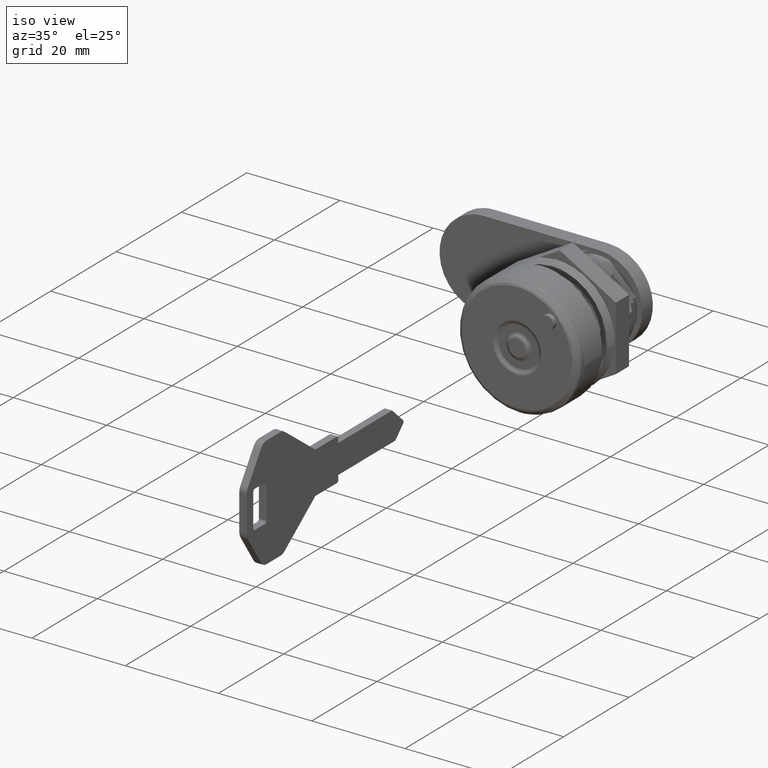
[diagram: clean part render]
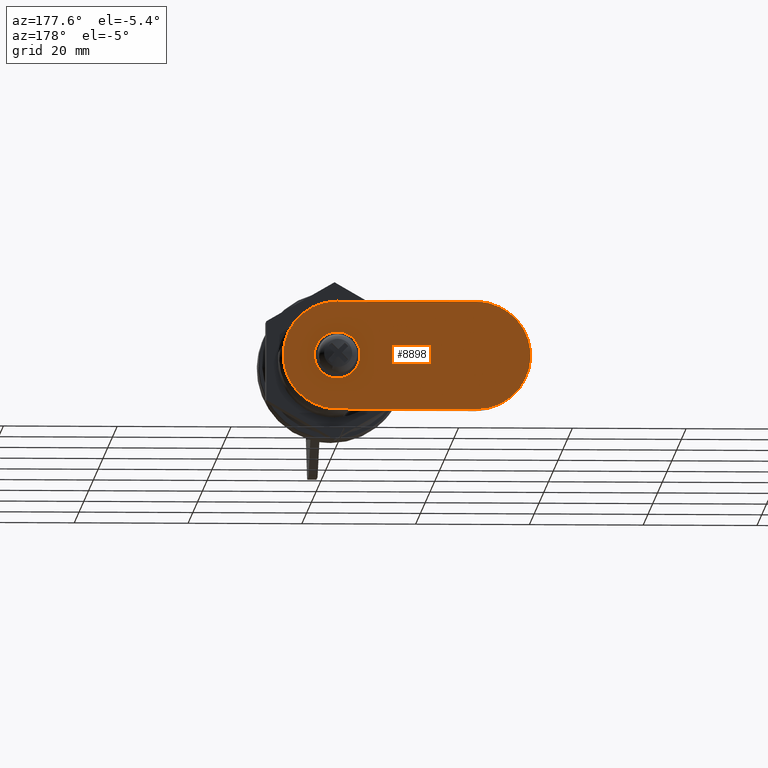
[diagram: tour spotlight — one face highlighted and labeled with its STEP entity id]
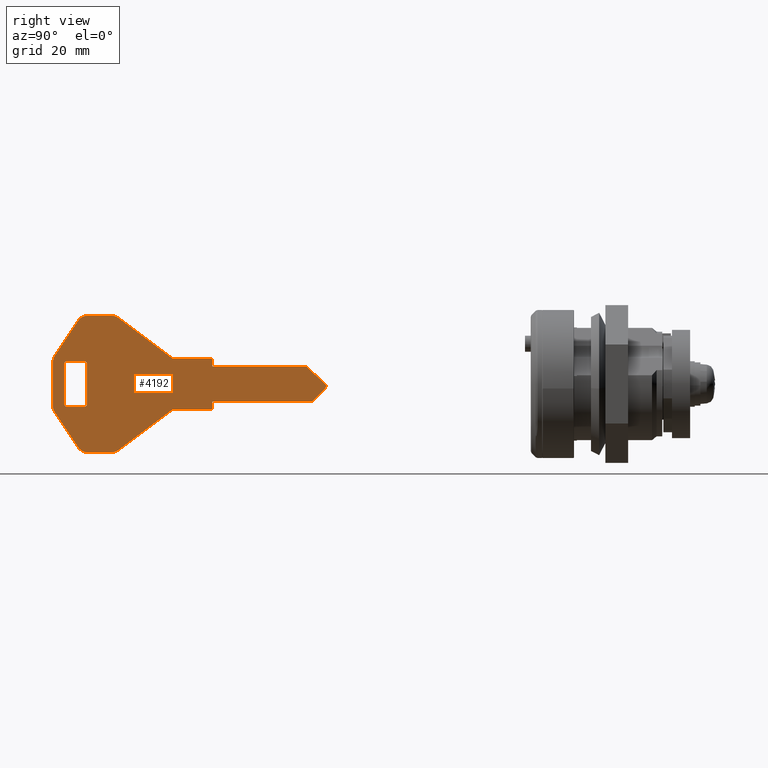
[diagram: tour spotlight — one face highlighted and labeled with its STEP entity id]
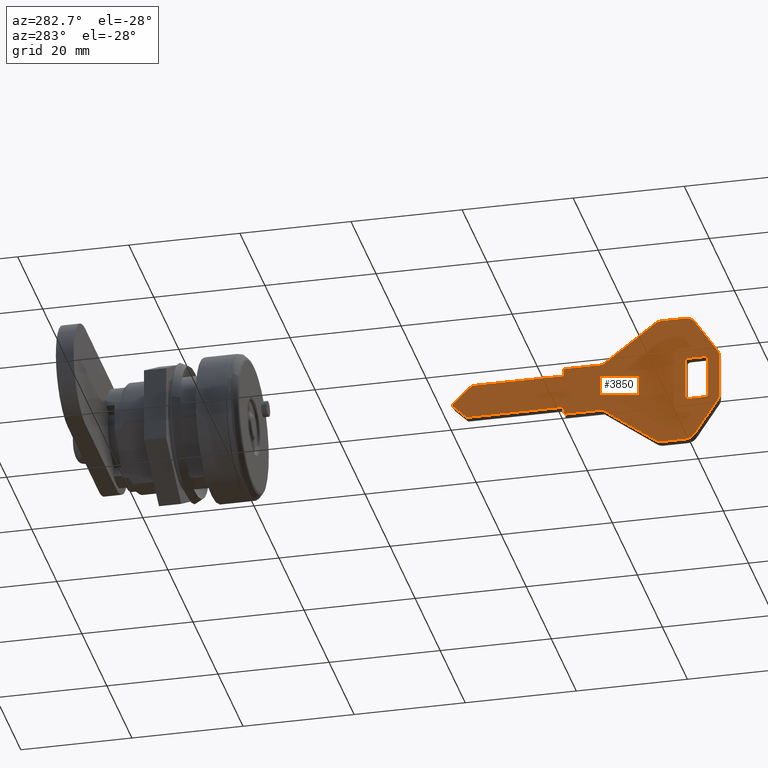
[diagram: tour spotlight — one face highlighted and labeled with its STEP entity id]
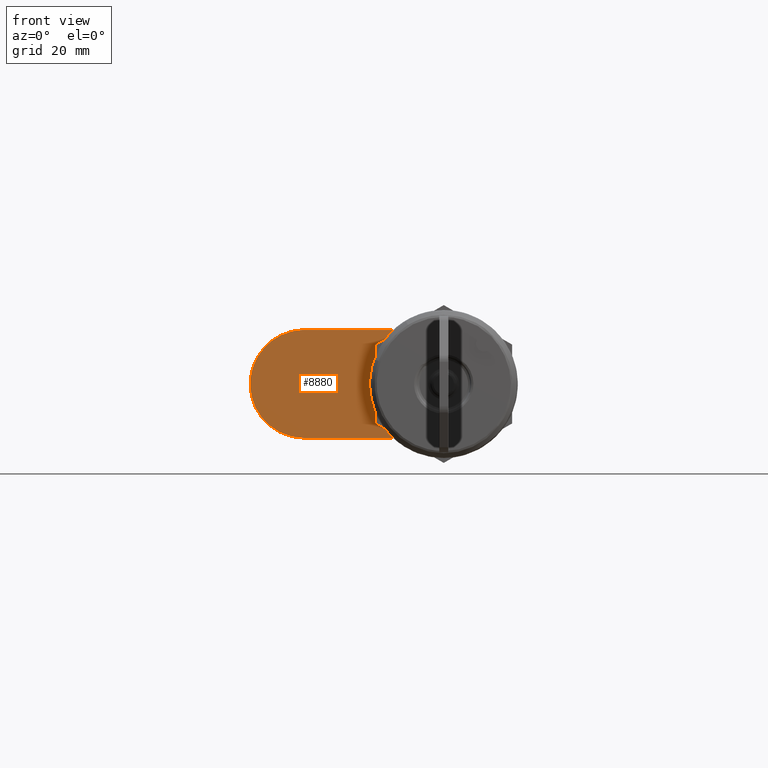
[diagram: tour spotlight — one face highlighted and labeled with its STEP entity id]
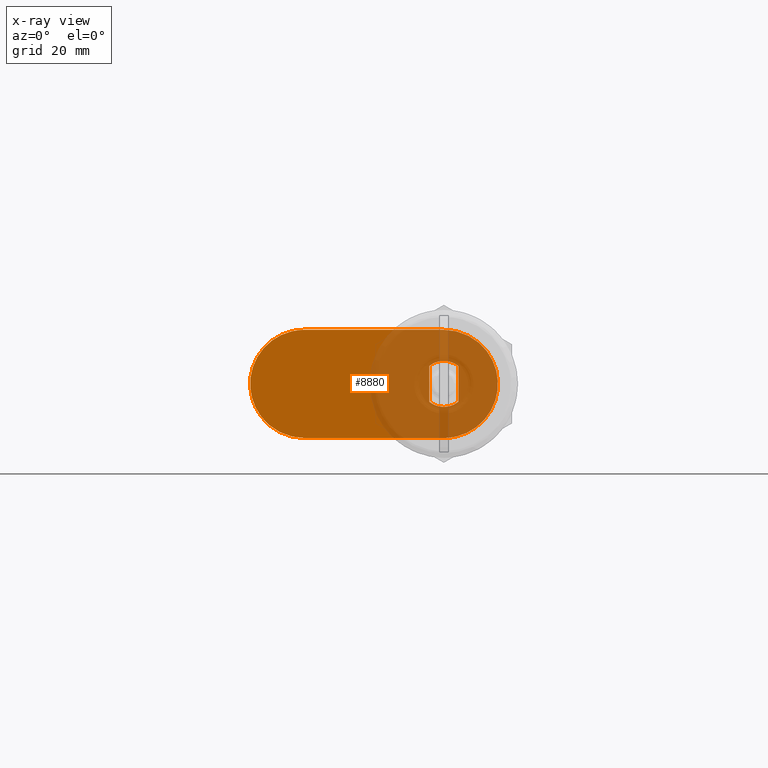
[diagram: x-ray of the same camera — body ghosted, this tour face saturated]
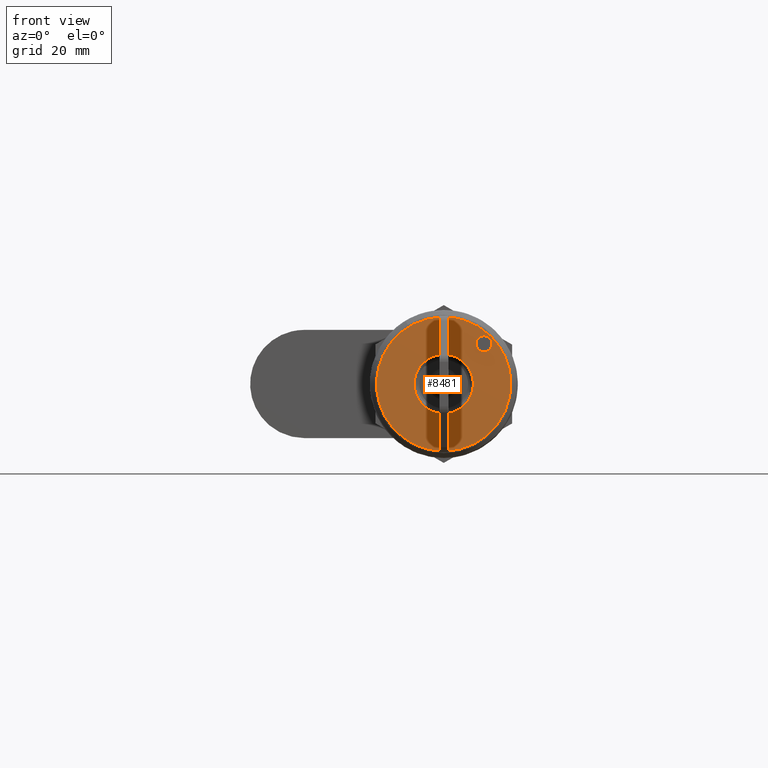
[diagram: tour spotlight — one face highlighted and labeled with its STEP entity id]
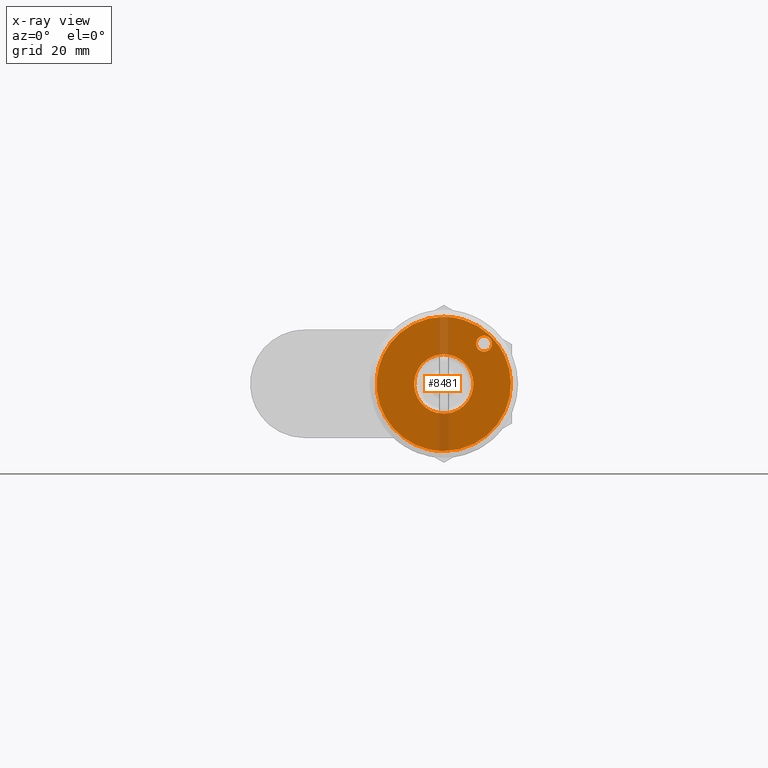
[diagram: x-ray of the same camera — body ghosted, this tour face saturated]
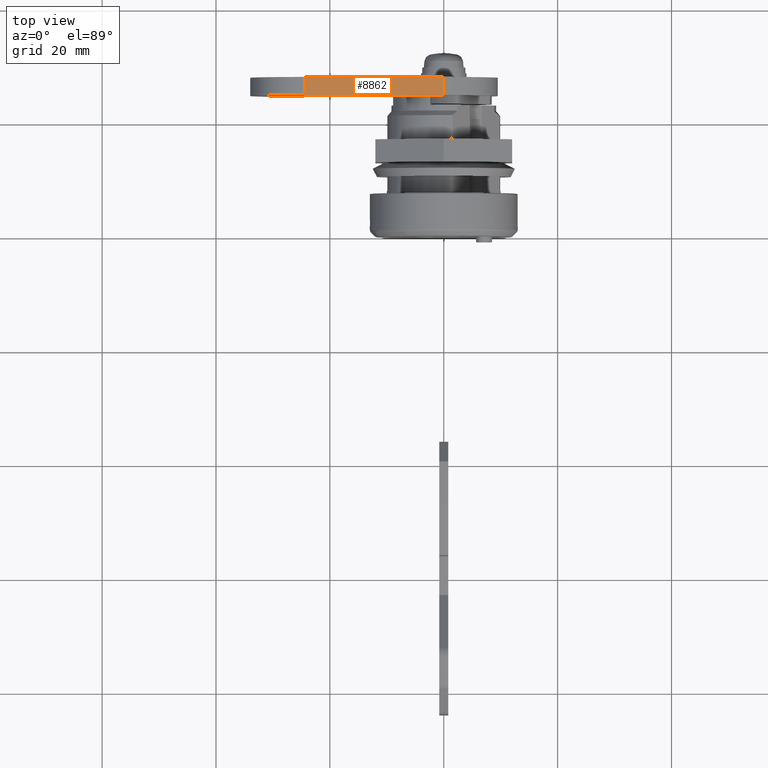
[diagram: tour spotlight — one face highlighted and labeled with its STEP entity id]
A machine part: a face-by-face anatomy tour. The part has 203 B-rep faces; the first image is the clean iso view, then the 6 largest visible faces are spotlighted one at a time (largest first), each with its STEP entity span.

Face 1 — auxiliary view, entity #8898. In plain terms, the highlighted face is a freeform B-spline surface patch.
Definition (entity closure, byte-faithful):
#8537=CARTESIAN_POINT('',(28.0,-2.550000000000000,3.146426544510455));
#8538=VERTEX_POINT('',#8537);
#8544=CARTESIAN_POINT('',(28.0,-2.550000000000000,-3.146426544510455));
#8545=VERTEX_POINT('',#8544);
#8546=CARTESIAN_POINT('',(28.0,-2.550000000000000,-3.146426544510455));
#8547=CARTESIAN_POINT('',(28.0,-2.550000000000000,3.146426544510455));
#8548=QUASI_UNIFORM_CURVE('',1,(#8546,#8547),.UNSPECIFIED.,.F.,.U.);
#8549=EDGE_CURVE('',#8545,#8538,#8548,.T.);
#8588=CARTESIAN_POINT('',(28.0,2.550000000000000,3.146426544510455));
#8589=VERTEX_POINT('',#8588);
#8595=CARTESIAN_POINT('',(28.0,2.550000000000002,3.146426544510453));
#8596=CARTESIAN_POINT('',(28.000000000000007,1.301043E-015,5.213056706700277));
#8597=CARTESIAN_POINT('',(28.0,-2.550000000000000,3.146426544510454));
#8605=(BOUNDED_CURVE()B_SPLINE_CURVE(2,(#8595,#8596,#8597),.UNSPECIFIED.,.F.,.U.)CURVE()GEOMETRIC_REPRESENTATION_ITEM()QUASI_UNIFORM_CURVE()RATIONAL_B_SPLINE_CURVE((1.0,0.776895443089001,1.0))REPRESENTATION_ITEM(''));
#8606=EDGE_CURVE('',#8589,#8538,#8605,.T.);
#8624=CARTESIAN_POINT('',(28.0,2.550000000000000,-3.146426544510455));
#8625=VERTEX_POINT('',#8624);
#8631=CARTESIAN_POINT('',(28.0,2.550000000000000,3.146426544510455));
#8632=CARTESIAN_POINT('',(28.0,2.550000000000000,-3.146426544510455));
#8633=QUASI_UNIFORM_CURVE('',1,(#8631,#8632),.UNSPECIFIED.,.F.,.U.);
#8634=EDGE_CURVE('',#8589,#8625,#8633,.T.);
#8668=CARTESIAN_POINT('',(28.0,-2.549999999999999,-3.146426544510454));
#8669=CARTESIAN_POINT('',(27.999999999999996,-4.336809E-016,-5.213056706700276));
#8670=CARTESIAN_POINT('',(28.0,2.549999999999999,-3.146426544510455));
#8678=(BOUNDED_CURVE()B_SPLINE_CURVE(2,(#8668,#8669,#8670),.UNSPECIFIED.,.F.,.U.)CURVE()GEOMETRIC_REPRESENTATION_ITEM()QUASI_UNIFORM_CURVE()RATIONAL_B_SPLINE_CURVE((1.0,0.776895443089001,1.0))REPRESENTATION_ITEM(''));
#8679=EDGE_CURVE('',#8545,#8625,#8678,.T.);
#8722=CARTESIAN_POINT('',(28.0,24.499999999990049,9.500000000000000));
#8723=VERTEX_POINT('',#8722);
#8729=CARTESIAN_POINT('',(28.0,24.499999999990049,-9.500000000000000));
#8730=VERTEX_POINT('',#8729);
#8731=CARTESIAN_POINT('',(28.0,24.499999999990049,-9.499999999999998));
#8732=CARTESIAN_POINT('',(27.999999999999996,33.999999999990045,-9.499999999999998));
#8733=CARTESIAN_POINT('',(28.0,33.999999999990052,1.500143E-015));
#8734=CARTESIAN_POINT('',(27.999999999999996,33.999999999990045,9.500000000000002));
#8735=CARTESIAN_POINT('',(28.0,24.499999999990049,9.500000000000002));
#8743=(BOUNDED_CURVE()B_SPLINE_CURVE(2,(#8731,#8732,#8733,#8734,#8735),.UNSPECIFIED.,.F.,.U.)B_SPLINE_CURVE_WITH_KNOTS((3,2,3),(0.0,0.500000000000000,1.0),.UNSPECIFIED.)CURVE()GEOMETRIC_REPRESENTATION_ITEM()RATIONAL_B_SPLINE_CURVE((1.0,0.707106781186548,1.0,0.707106781186548,1.0))REPRESENTATION_ITEM(''));
#8744=EDGE_CURVE('',#8730,#8723,#8743,.T.);
#8767=CARTESIAN_POINT('',(28.0,-1.745064E-015,-9.500000000000000));
#8768=VERTEX_POINT('',#8767);
#8769=CARTESIAN_POINT('',(28.0,-1.745064E-015,-9.500000000000000));
#8770=CARTESIAN_POINT('',(28.0,24.499999999990049,-9.500000000000000));
#8771=QUASI_UNIFORM_CURVE('',1,(#8769,#8770),.UNSPECIFIED.,.F.,.U.);
#8772=EDGE_CURVE('',#8768,#8730,#8771,.T.);
#8818=CARTESIAN_POINT('',(28.0,5.816880E-016,9.500000000000000));
#8819=VERTEX_POINT('',#8818);
#8820=CARTESIAN_POINT('',(28.0,0.0,9.500000000000000));
#8821=CARTESIAN_POINT('',(27.999999999999996,-9.500000000000000,9.500000000000000));
#8822=CARTESIAN_POINT('',(28.0,-9.500000000000000,0.0));
#8823=CARTESIAN_POINT('',(27.999999999999996,-9.500000000000000,-9.500000000000000));
#8824=CARTESIAN_POINT('',(28.0,0.0,-9.500000000000000));
#8832=(BOUNDED_CURVE()B_SPLINE_CURVE(2,(#8820,#8821,#8822,#8823,#8824),.UNSPECIFIED.,.F.,.U.)B_SPLINE_CURVE_WITH_KNOTS((3,2,3),(0.0,0.500000000000000,1.0),.UNSPECIFIED.)CURVE()GEOMETRIC_REPRESENTATION_ITEM()RATIONAL_B_SPLINE_CURVE((1.0,0.707106781186548,1.0,0.707106781186548,1.0))REPRESENTATION_ITEM(''));
#8833=EDGE_CURVE('',#8819,#8768,#8832,.T.);
#8854=CARTESIAN_POINT('',(28.0,24.499999999990049,9.500000000000000));
#8855=CARTESIAN_POINT('',(28.0,5.816880E-016,9.500000000000000));
#8856=QUASI_UNIFORM_CURVE('',1,(#8854,#8855),.UNSPECIFIED.,.F.,.U.);
#8857=EDGE_CURVE('',#8723,#8819,#8856,.T.);
#8881=CARTESIAN_POINT('',(28.0,-11.672824915687780,10.449049963174311));
#8882=CARTESIAN_POINT('',(28.0,36.172826082438753,10.449049963174311));
#8883=CARTESIAN_POINT('',(28.0,-11.672824915687780,-10.449050472794029));
#8884=CARTESIAN_POINT('',(28.0,36.172826082438753,-10.449050472794029));
#8885=B_SPLINE_SURFACE_WITH_KNOTS('',1,1,((#8881,#8883),(#8882,#8884)),.UNSPECIFIED.,.F.,.F.,.U.,(2,2),(2,2),(0.0,47.845650998126530),(0.0,20.898100435968342),.UNSPECIFIED.);
#8886=ORIENTED_EDGE('',*,*,#8857,.T.);
#8887=ORIENTED_EDGE('',*,*,#8833,.T.);
#8888=ORIENTED_EDGE('',*,*,#8772,.T.);
#8889=ORIENTED_EDGE('',*,*,#8744,.T.);
#8890=EDGE_LOOP('',(#8886,#8887,#8888,#8889));
#8891=FACE_OUTER_BOUND('',#8890,.T.);
#8892=ORIENTED_EDGE('',*,*,#8634,.T.);
#8893=ORIENTED_EDGE('',*,*,#8679,.F.);
#8894=ORIENTED_EDGE('',*,*,#8549,.T.);
#8895=ORIENTED_EDGE('',*,*,#8606,.F.);
#8896=EDGE_LOOP('',(#8892,#8893,#8894,#8895));
#8897=FACE_BOUND('',#8896,.T.);
#8898=ADVANCED_FACE('',(#8891,#8897),#8885,.F.);

Face 2 — right view, entity #4192. In plain terms, the highlighted face is a freeform B-spline surface patch.
Definition (entity closure, byte-faithful):
#3851=CARTESIAN_POINT('',(-86.317350862270033,-0.799999999999946,13.198799953483370));
#3852=CARTESIAN_POINT('',(-33.522216572727380,-0.799999999999946,13.198799953483370));
#3853=CARTESIAN_POINT('',(-86.317350862270033,-0.799999999999946,-13.198800597213991));
#3854=CARTESIAN_POINT('',(-33.522216572727380,-0.799999999999946,-13.198800597213991));
#3855=B_SPLINE_SURFACE_WITH_KNOTS('',1,1,((#3851,#3853),(#3852,#3854)),.UNSPECIFIED.,.F.,.F.,.U.,(2,2),(2,2),(0.0,52.795134289542652),(0.0,26.397600550697359),.UNSPECIFIED.);
#3856=CARTESIAN_POINT('',(-72.386423660181407,-0.799999999999912,11.599999999999840));
#3857=VERTEX_POINT('',#3856);
#3858=CARTESIAN_POINT('',(-73.586423660181410,-0.799999999999912,12.0));
#3859=VERTEX_POINT('',#3858);
#3860=CARTESIAN_POINT('',(-72.386423660181478,-0.799999999999912,11.599999999999721));
#3861=CARTESIAN_POINT('',(-72.919756993514795,-0.799999999999912,11.999999999999661));
#3862=CARTESIAN_POINT('',(-73.586423660181410,-0.799999999999912,12.0));
#3870=(BOUNDED_CURVE()B_SPLINE_CURVE(2,(#3860,#3861,#3862),.UNSPECIFIED.,.F.,.U.)CURVE()GEOMETRIC_REPRESENTATION_ITEM()QUASI_UNIFORM_CURVE()RATIONAL_B_SPLINE_CURVE((1.0,0.948683298050522,1.0))REPRESENTATION_ITEM(''));
#3871=EDGE_CURVE('',#3857,#3859,#3870,.T.);
#3872=ORIENTED_EDGE('',*,*,#3871,.T.);
#3873=CARTESIAN_POINT('',(-77.849389476538491,-0.799999999999912,12.0));
#3874=VERTEX_POINT('',#3873);
#3875=CARTESIAN_POINT('',(-73.586423660181410,-0.799999999999912,12.0));
#3876=CARTESIAN_POINT('',(-77.849389476538491,-0.799999999999912,12.0));
#3877=QUASI_UNIFORM_CURVE('',1,(#3875,#3876),.UNSPECIFIED.,.F.,.U.);
#3878=EDGE_CURVE('',#3859,#3874,#3877,.T.);
#3879=ORIENTED_EDGE('',*,*,#3878,.T.);
#3880=CARTESIAN_POINT('',(-79.513490065214512,-0.799999999999912,11.109400392450020));
#3881=VERTEX_POINT('',#3880);
#3882=CARTESIAN_POINT('',(-77.849389476538491,-0.799999999999912,12.0));
#3883=CARTESIAN_POINT('',(-78.919756993514852,-0.799999999999912,11.999999999999657));
#3884=CARTESIAN_POINT('',(-79.513490065214540,-0.799999999999912,11.109400392450040));
#3892=(BOUNDED_CURVE()B_SPLINE_CURVE(2,(#3882,#3883,#3884),.UNSPECIFIED.,.F.,.U.)CURVE()GEOMETRIC_REPRESENTATION_ITEM()QUASI_UNIFORM_CURVE()RATIONAL_B_SPLINE_CURVE((1.0,0.881674598767933,1.0))REPRESENTATION_ITEM(''));
#3893=EDGE_CURVE('',#3874,#3881,#3892,.T.);
#3894=ORIENTED_EDGE('',*,*,#3893,.T.);
#3895=CARTESIAN_POINT('',(-83.583857582190291,-0.799999999999912,5.003849116986350));
#3896=VERTEX_POINT('',#3895);
#3897=CARTESIAN_POINT('',(-79.513490065214512,-0.799999999999912,11.109400392450020));
#3898=CARTESIAN_POINT('',(-83.583857582190291,-0.799999999999912,5.003849116986350));
#3899=QUASI_UNIFORM_CURVE('',1,(#3897,#3898),.UNSPECIFIED.,.F.,.U.);
#3900=EDGE_CURVE('',#3881,#3896,#3899,.T.);
#3901=ORIENTED_EDGE('',*,*,#3900,.T.);
#3902=CARTESIAN_POINT('',(-83.919756993514909,-0.799999999999912,3.894448724535865));
#3903=VERTEX_POINT('',#3902);
#3904=CARTESIAN_POINT('',(-83.583857582190490,-0.799999999999912,5.003849116986479));
#3905=CARTESIAN_POINT('',(-83.919756993514909,-0.799999999999912,4.499999999999957));
#3906=CARTESIAN_POINT('',(-83.919756993514909,-0.799999999999912,3.894448724535865));
#3914=(BOUNDED_CURVE()B_SPLINE_CURVE(2,(#3904,#3905,#3906),.UNSPECIFIED.,.F.,.U.)CURVE()GEOMETRIC_REPRESENTATION_ITEM()QUASI_UNIFORM_CURVE()RATIONAL_B_SPLINE_CURVE((1.0,0.957092026489039,1.0))REPRESENTATION_ITEM(''));
#3915=EDGE_CURVE('',#3896,#3903,#3914,.T.);
#3916=ORIENTED_EDGE('',*,*,#3915,.T.);
#3917=CARTESIAN_POINT('',(-83.919756993514696,-0.799999999999912,-3.894448724536145));
#3918=VERTEX_POINT('',#3917);
#3919=CARTESIAN_POINT('',(-83.919756993514909,-0.799999999999912,3.894448724535865));
#3920=CARTESIAN_POINT('',(-83.919756993514696,-0.799999999999912,-3.894448724536145));
#3921=QUASI_UNIFORM_CURVE('',1,(#3919,#3920),.UNSPECIFIED.,.F.,.U.);
#3922=EDGE_CURVE('',#3903,#3918,#3921,.T.);
#3923=ORIENTED_EDGE('',*,*,#3922,.T.);
#3924=CARTESIAN_POINT('',(-83.583857582190703,-0.799999999999912,-5.003849116986491));
#3925=VERTEX_POINT('',#3924);
#3926=CARTESIAN_POINT('',(-83.919756993514909,-0.799999999999912,-3.894448724536145));
#3927=CARTESIAN_POINT('',(-83.919756993514923,-0.799999999999912,-4.500000000000054));
#3928=CARTESIAN_POINT('',(-83.583857582190689,-0.799999999999912,-5.003849116986478));
#3936=(BOUNDED_CURVE()B_SPLINE_CURVE(2,(#3926,#3927,#3928),.UNSPECIFIED.,.F.,.U.)CURVE()GEOMETRIC_REPRESENTATION_ITEM()QUASI_UNIFORM_CURVE()RATIONAL_B_SPLINE_CURVE((1.0,0.957092026489064,1.0))REPRESENTATION_ITEM(''));
#3937=EDGE_CURVE('',#3918,#3925,#3936,.T.);
#3938=ORIENTED_EDGE('',*,*,#3937,.T.);
#3939=CARTESIAN_POINT('',(-79.513490065214413,-0.799999999999912,-11.109400392450739));
#3940=VERTEX_POINT('',#3939);
#3941=CARTESIAN_POINT('',(-83.583857582190703,-0.799999999999912,-5.003849116986491));
#3942=CARTESIAN_POINT('',(-79.513490065214413,-0.799999999999912,-11.109400392450739));
#3943=QUASI_UNIFORM_CURVE('',1,(#3941,#3942),.UNSPECIFIED.,.F.,.U.);
#3944=EDGE_CURVE('',#3925,#3940,#3943,.T.);
#3945=ORIENTED_EDGE('',*,*,#3944,.T.);
#3946=CARTESIAN_POINT('',(-77.849389476538803,-0.799999999999912,-12.000000000000460));
#3947=VERTEX_POINT('',#3946);
#3948=CARTESIAN_POINT('',(-79.513490065214555,-0.799999999999912,-11.109400392450830));
#3949=CARTESIAN_POINT('',(-78.919756993514866,-0.799999999999912,-12.000000000000462));
#3950=CARTESIAN_POINT('',(-77.849389476538803,-0.799999999999912,-12.000000000000460));
#3958=(BOUNDED_CURVE()B_SPLINE_CURVE(2,(#3948,#3949,#3950),.UNSPECIFIED.,.F.,.U.)CURVE()GEOMETRIC_REPRESENTATION_ITEM()QUASI_UNIFORM_CURVE()RATIONAL_B_SPLINE_CURVE((1.0,0.881674598767931,1.0))REPRESENTATION_ITEM(''));
#3959=EDGE_CURVE('',#3940,#3947,#3958,.T.);
#3960=ORIENTED_EDGE('',*,*,#3959,.T.);
#3961=CARTESIAN_POINT('',(-73.586423660181410,-0.799999999999912,-12.000000000000259));
#3962=VERTEX_POINT('',#3961);
#3963=CARTESIAN_POINT('',(-77.849389476538803,-0.799999999999912,-12.000000000000460));
#3964=CARTESIAN_POINT('',(-73.586423660181410,-0.799999999999912,-12.000000000000259));
#3965=QUASI_UNIFORM_CURVE('',1,(#3963,#3964),.UNSPECIFIED.,.F.,.U.);
#3966=EDGE_CURVE('',#3947,#3962,#3965,.T.);
#3967=ORIENTED_EDGE('',*,*,#3966,.T.);
#3968=CARTESIAN_POINT('',(-72.386423660181805,-0.799999999999912,-11.600000000000540));
#3969=VERTEX_POINT('',#3968);
#3970=CARTESIAN_POINT('',(-73.586423660181410,-0.799999999999912,-12.000000000000460));
#3971=CARTESIAN_POINT('',(-72.919756993514980,-0.799999999999912,-12.000000000000361));
#3972=CARTESIAN_POINT('',(-72.386423660181805,-0.799999999999912,-11.600000000000531));
#3980=(BOUNDED_CURVE()B_SPLINE_CURVE(2,(#3970,#3971,#3972),.UNSPECIFIED.,.F.,.U.)CURVE()GEOMETRIC_REPRESENTATION_ITEM()QUASI_UNIFORM_CURVE()RATIONAL_B_SPLINE_CURVE((1.0,0.948683298050547,1.0))REPRESENTATION_ITEM(''));
#3981=EDGE_CURVE('',#3962,#3969,#3980,.T.);
#3982=ORIENTED_EDGE('',*,*,#3981,.T.);
#3983=CARTESIAN_POINT('',(-62.919756993514703,-0.799999999999912,-4.500000000000060));
#3984=VERTEX_POINT('',#3983);
#3985=CARTESIAN_POINT('',(-72.386423660181805,-0.799999999999912,-11.600000000000540));
#3986=CARTESIAN_POINT('',(-62.919756993514703,-0.799999999999912,-4.500000000000060));
#3987=QUASI_UNIFORM_CURVE('',1,(#3985,#3986),.UNSPECIFIED.,.F.,.U.);
#3988=EDGE_CURVE('',#3969,#3984,#3987,.T.);
#3989=ORIENTED_EDGE('',*,*,#3988,.T.);
#3990=CARTESIAN_POINT('',(-56.219756993514601,-0.799999999999912,-4.500000000000139));
#3991=VERTEX_POINT('',#3990);
#3992=CARTESIAN_POINT('',(-62.919756993514703,-0.799999999999912,-4.500000000000060));
#3993=CARTESIAN_POINT('',(-56.219756993514601,-0.799999999999912,-4.500000000000139));
#3994=QUASI_UNIFORM_CURVE('',1,(#3992,#3993),.UNSPECIFIED.,.F.,.U.);
#3995=EDGE_CURVE('',#3984,#3991,#3994,.T.);
#3996=ORIENTED_EDGE('',*,*,#3995,.T.);
#3997=CARTESIAN_POINT('',(-55.919756993514902,-0.799999999999912,-4.200000000000360));
#3998=VERTEX_POINT('',#3997);
#3999=CARTESIAN_POINT('',(-56.219756993514601,-0.799999999999912,-4.500000000000139));
#4000=CARTESIAN_POINT('',(-55.919756993514895,-0.799999999999912,-4.500000000000061));
#4001=CARTESIAN_POINT('',(-55.919756993514902,-0.799999999999912,-4.200000000000360));
#4009=(BOUNDED_CURVE()B_SPLINE_CURVE(2,(#3999,#4000,#4001),.UNSPECIFIED.,.F.,.U.)CURVE()GEOMETRIC_REPRESENTATION_ITEM()QUASI_UNIFORM_CURVE()RATIONAL_B_SPLINE_CURVE((1.0,0.707106781186899,1.0))REPRESENTATION_ITEM(''));
#4010=EDGE_CURVE('',#3991,#3998,#4009,.T.);
#4011=ORIENTED_EDGE('',*,*,#4010,.T.);
#4012=CARTESIAN_POINT('',(-55.919756993514703,-0.799999999999912,-3.100000000000135));
#4013=VERTEX_POINT('',#4012);
#4014=CARTESIAN_POINT('',(-55.919756993514902,-0.799999999999912,-4.200000000000360));
#4015=CARTESIAN_POINT('',(-55.919756993514703,-0.799999999999912,-3.100000000000135));
#4016=QUASI_UNIFORM_CURVE('',1,(#4014,#4015),.UNSPECIFIED.,.F.,.U.);
#4017=EDGE_CURVE('',#3998,#4013,#4016,.T.);
#4018=ORIENTED_EDGE('',*,*,#4017,.T.);
#4019=CARTESIAN_POINT('',(-38.419756993514703,-0.799999999999912,-3.100000000000135));
#4020=VERTEX_POINT('',#4019);
#4021=CARTESIAN_POINT('',(-55.919756993514703,-0.799999999999912,-3.100000000000135));
#4022=CARTESIAN_POINT('',(-38.419756993514703,-0.799999999999912,-3.100000000000135));
#4023=QUASI_UNIFORM_CURVE('',1,(#4021,#4022),.UNSPECIFIED.,.F.,.U.);
#4024=EDGE_CURVE('',#4013,#4020,#4023,.T.);
#4025=ORIENTED_EDGE('',*,*,#4024,.T.);
#4026=CARTESIAN_POINT('',(-36.066738668804803,-0.799999999999912,-0.754087647933545));
#4027=VERTEX_POINT('',#4026);
#4028=CARTESIAN_POINT('',(-38.419756993514703,-0.799999999999912,-3.100000000000135));
#4029=CARTESIAN_POINT('',(-36.066738668804803,-0.799999999999912,-0.754087647933545));
#4030=QUASI_UNIFORM_CURVE('',1,(#4028,#4029),.UNSPECIFIED.,.F.,.U.);
#4031=EDGE_CURVE('',#4020,#4027,#4030,.T.);
#4032=ORIENTED_EDGE('',*,*,#4031,.T.);
#4033=CARTESIAN_POINT('',(-36.077662524518551,-0.799999999999912,-0.035347598003359));
#4034=VERTEX_POINT('',#4033);
#4035=CARTESIAN_POINT('',(-36.066738668804852,-0.799999999999912,-0.754087647933497));
#4036=CARTESIAN_POINT('',(-35.916592723707375,-0.799999999999912,-0.604395134484667));
#4037=CARTESIAN_POINT('',(-35.919814733011769,-0.799999999999912,-0.392401568384461));
#4038=CARTESIAN_POINT('',(-35.923036742316150,-0.799999999999912,-0.180408002284255));
#4039=CARTESIAN_POINT('',(-36.077662524518537,-0.799999999999912,-0.035347598003348));
#4047=(BOUNDED_CURVE()B_SPLINE_CURVE(2,(#4035,#4036,#4037,#4038,#4039),.UNSPECIFIED.,.F.,.U.)B_SPLINE_CURVE_WITH_KNOTS((3,2,3),(0.0,0.500000000000000,1.0),.UNSPECIFIED.)CURVE()GEOMETRIC_REPRESENTATION_ITEM()RATIONAL_B_SPLINE_CURVE((1.0,0.920650062157994,1.0,0.920650062157994,1.0))REPRESENTATION_ITEM(''));
#4048=EDGE_CURVE('',#4027,#4034,#4047,.T.);
#4049=ORIENTED_EDGE('',*,*,#4048,.T.);
#4050=CARTESIAN_POINT('',(-39.419756993514703,-0.799999999999912,3.099999999999850));
#4051=VERTEX_POINT('',#4050);
#4052=CARTESIAN_POINT('',(-36.077662524518551,-0.799999999999912,-0.035347598003359));
#4053=CARTESIAN_POINT('',(-39.419756993514703,-0.799999999999912,3.099999999999850));
#4054=QUASI_UNIFORM_CURVE('',1,(#4052,#4053),.UNSPECIFIED.,.F.,.U.);
#4055=EDGE_CURVE('',#4034,#4051,#4054,.T.);
#4056=ORIENTED_EDGE('',*,*,#4055,.T.);
#4057=CARTESIAN_POINT('',(-55.919756993514703,-0.799999999999912,3.099999999999850));
#4058=VERTEX_POINT('',#4057);
#4059=CARTESIAN_POINT('',(-39.419756993514703,-0.799999999999912,3.099999999999850));
#4060=CARTESIAN_POINT('',(-55.919756993514703,-0.799999999999912,3.099999999999850));
#4061=QUASI_UNIFORM_CURVE('',1,(#4059,#4060),.UNSPECIFIED.,.F.,.U.);
#4062=EDGE_CURVE('',#4051,#4058,#4061,.T.);
#4063=ORIENTED_EDGE('',*,*,#4062,.T.);
#4064=CARTESIAN_POINT('',(-55.919756993514703,-0.799999999999912,4.199999999999845));
#4065=VERTEX_POINT('',#4064);
#4066=CARTESIAN_POINT('',(-55.919756993514703,-0.799999999999912,3.099999999999850));
#4067=CARTESIAN_POINT('',(-55.919756993514703,-0.799999999999912,4.199999999999845));
#4068=QUASI_UNIFORM_CURVE('',1,(#4066,#4067),.UNSPECIFIED.,.F.,.U.);
#4069=EDGE_CURVE('',#4058,#4065,#4068,.T.);
#4070=ORIENTED_EDGE('',*,*,#4069,.T.);
#4071=CARTESIAN_POINT('',(-56.219756993514899,-0.799999999999912,4.499999999999759));
#4072=VERTEX_POINT('',#4071);
#4073=CARTESIAN_POINT('',(-55.919756993514902,-0.799999999999912,4.199999999999845));
#4074=CARTESIAN_POINT('',(-55.919756993514980,-0.799999999999912,4.499999999999759));
#4075=CARTESIAN_POINT('',(-56.219756993514899,-0.799999999999912,4.499999999999759));
#4083=(BOUNDED_CURVE()B_SPLINE_CURVE(2,(#4073,#4074,#4075),.UNSPECIFIED.,.F.,.U.)CURVE()GEOMETRIC_REPRESENTATION_ITEM()QUASI_UNIFORM_CURVE()RATIONAL_B_SPLINE_CURVE((1.0,0.707106781186648,1.0))REPRESENTATION_ITEM(''));
#4084=EDGE_CURVE('',#4065,#4072,#4083,.T.);
#4085=ORIENTED_EDGE('',*,*,#4084,.T.);
#4086=CARTESIAN_POINT('',(-62.919756993514703,-0.799999999999912,4.499999999999860));
#4087=VERTEX_POINT('',#4086);
#4088=CARTESIAN_POINT('',(-56.219756993514899,-0.799999999999912,4.499999999999759));
#4089=CARTESIAN_POINT('',(-62.919756993514703,-0.799999999999912,4.499999999999860));
#4090=QUASI_UNIFORM_CURVE('',1,(#4088,#4089),.UNSPECIFIED.,.F.,.U.);
#4091=EDGE_CURVE('',#4072,#4087,#4090,.T.);
#4092=ORIENTED_EDGE('',*,*,#4091,.T.);
#4093=CARTESIAN_POINT('',(-62.919756993514703,-0.799999999999912,4.499999999999860));
#4094=CARTESIAN_POINT('',(-72.386423660181407,-0.799999999999912,11.599999999999840));
#4095=QUASI_UNIFORM_CURVE('',1,(#4093,#4094),.UNSPECIFIED.,.F.,.U.);
#4096=EDGE_CURVE('',#4087,#3857,#4095,.T.);
#4097=ORIENTED_EDGE('',*,*,#4096,.T.);
#4098=EDGE_LOOP('',(#3872,#3879,#3894,#3901,#3916,#3923,#3938,#3945,#3960,#3967,#3982,#3989,#3996,#4011,#4018,#4025,#4032,#4049,#4056,#4063,#4070,#4085,#4092,#4097));
#4099=FACE_OUTER_BOUND('',#4098,.T.);
#4100=CARTESIAN_POINT('',(-81.419756993514909,-0.799999999999912,4.000000000000055));
#4101=VERTEX_POINT('',#4100);
#4102=CARTESIAN_POINT('',(-81.919756993514696,-0.799999999999912,3.500000000000055));
#4103=VERTEX_POINT('',#4102);
#4104=CARTESIAN_POINT('',(-81.419756993514909,-0.799999999999912,4.000000000000056));
#4105=CARTESIAN_POINT('',(-81.919756993514923,-0.799999999999912,4.000000000000056));
#4106=CARTESIAN_POINT('',(-81.919756993514909,-0.799999999999912,3.500000000000055));
#4114=(BOUNDED_CURVE()B_SPLINE_CURVE(2,(#4104,#4105,#4106),.UNSPECIFIED.,.F.,.U.)CURVE()GEOMETRIC_REPRESENTATION_ITEM()QUASI_UNIFORM_CURVE()RATIONAL_B_SPLINE_CURVE((1.0,0.707106781186548,1.0))REPRESENTATION_ITEM(''));
#4115=EDGE_CURVE('',#4101,#4103,#4114,.T.);
#4116=ORIENTED_EDGE('',*,*,#4115,.F.);
#4117=CARTESIAN_POINT('',(-78.419756993514909,-0.799999999999912,3.999999999999545));
#4118=VERTEX_POINT('',#4117);
#4119=CARTESIAN_POINT('',(-81.419756993514909,-0.799999999999912,4.000000000000055));
#4120=CARTESIAN_POINT('',(-78.419756993514909,-0.799999999999912,3.999999999999545));
#4121=QUASI_UNIFORM_CURVE('',1,(#4119,#4120),.UNSPECIFIED.,.F.,.U.);
#4122=EDGE_CURVE('',#4101,#4118,#4121,.T.);
#4123=ORIENTED_EDGE('',*,*,#4122,.T.);
#4124=CARTESIAN_POINT('',(-77.919756993514909,-0.799999999999912,3.499999999999545));
#4125=VERTEX_POINT('',#4124);
#4126=CARTESIAN_POINT('',(-77.919756993514909,-0.799999999999912,3.499999999999545));
#4127=CARTESIAN_POINT('',(-77.919756993514895,-0.799999999999912,3.999999999999546));
#4128=CARTESIAN_POINT('',(-78.419756993514909,-0.799999999999912,3.999999999999546));
#4136=(BOUNDED_CURVE()B_SPLINE_CURVE(2,(#4126,#4127,#4128),.UNSPECIFIED.,.F.,.U.)CURVE()GEOMETRIC_REPRESENTATION_ITEM()QUASI_UNIFORM_CURVE()RATIONAL_B_SPLINE_CURVE((1.0,0.707106781186548,1.0))REPRESENTATION_ITEM(''));
#4137=EDGE_CURVE('',#4125,#4118,#4136,.T.);
#4138=ORIENTED_EDGE('',*,*,#4137,.F.);
#4139=CARTESIAN_POINT('',(-77.919756993514696,-0.799999999999912,-3.500000000000255));
#4140=VERTEX_POINT('',#4139);
#4141=CARTESIAN_POINT('',(-77.919756993514909,-0.799999999999912,3.499999999999545));
#4142=CARTESIAN_POINT('',(-77.919756993514696,-0.799999999999912,-3.500000000000255));
#4143=QUASI_UNIFORM_CURVE('',1,(#4141,#4142),.UNSPECIFIED.,.F.,.U.);
#4144=EDGE_CURVE('',#4125,#4140,#4143,.T.);
#4145=ORIENTED_EDGE('',*,*,#4144,.T.);
#4146=CARTESIAN_POINT('',(-78.419756993514909,-0.799999999999912,-4.000000000000456));
#4147=VERTEX_POINT('',#4146);
#4148=CARTESIAN_POINT('',(-78.419756993514909,-0.799999999999912,-4.000000000000455));
#4149=CARTESIAN_POINT('',(-78.212650212328299,-0.799999999999912,-4.000000000000454));
#4150=CARTESIAN_POINT('',(-78.066203602921561,-0.799999999999912,-3.853553390593658));
#4151=CARTESIAN_POINT('',(-77.919756993514824,-0.799999999999912,-3.707106781186861));
#4152=CARTESIAN_POINT('',(-77.919756993514909,-0.799999999999912,-3.500000000000255));
#4160=(BOUNDED_CURVE()B_SPLINE_CURVE(2,(#4148,#4149,#4150,#4151,#4152),.UNSPECIFIED.,.F.,.U.)B_SPLINE_CURVE_WITH_KNOTS((3,2,3),(0.0,0.500000000000000,1.0),.UNSPECIFIED.)CURVE()GEOMETRIC_REPRESENTATION_ITEM()RATIONAL_B_SPLINE_CURVE((1.0,0.923879532511249,1.0,0.923879532511249,1.0))REPRESENTATION_ITEM(''));
#4161=EDGE_CURVE('',#4147,#4140,#4160,.T.);
#4162=ORIENTED_EDGE('',*,*,#4161,.F.);
#4163=CARTESIAN_POINT('',(-81.419756993514909,-0.799999999999912,-4.000000000000055));
#4164=VERTEX_POINT('',#4163);
#4165=CARTESIAN_POINT('',(-78.419756993514909,-0.799999999999912,-4.000000000000456));
#4166=CARTESIAN_POINT('',(-81.419756993514909,-0.799999999999912,-4.000000000000055));
#4167=QUASI_UNIFORM_CURVE('',1,(#4165,#4166),.UNSPECIFIED.,.F.,.U.);
#4168=EDGE_CURVE('',#4147,#4164,#4167,.T.);
#4169=ORIENTED_EDGE('',*,*,#4168,.T.);
#4170=CARTESIAN_POINT('',(-81.919756993514909,-0.799999999999912,-3.500000000000455));
#4171=VERTEX_POINT('',#4170);
#4172=CARTESIAN_POINT('',(-81.919756993514909,-0.799999999999912,-3.500000000000455));
#4173=CARTESIAN_POINT('',(-81.919756993514923,-0.799999999999912,-4.000000000000455));
#4174=CARTESIAN_POINT('',(-81.419756993514909,-0.799999999999912,-4.000000000000055));
#4182=(BOUNDED_CURVE()B_SPLINE_CURVE(2,(#4172,#4173,#4174),.UNSPECIFIED.,.F.,.U.)CURVE()GEOMETRIC_REPRESENTATION_ITEM()QUASI_UNIFORM_CURVE()RATIONAL_B_SPLINE_CURVE((1.0,0.707106781186548,1.0))REPRESENTATION_ITEM(''));
#4183=EDGE_CURVE('',#4171,#4164,#4182,.T.);
#4184=ORIENTED_EDGE('',*,*,#4183,.F.);
#4185=CARTESIAN_POINT('',(-81.919756993514909,-0.799999999999912,-3.500000000000455));
#4186=CARTESIAN_POINT('',(-81.919756993514696,-0.799999999999912,3.500000000000055));
#4187=QUASI_UNIFORM_CURVE('',1,(#4185,#4186),.UNSPECIFIED.,.F.,.U.);
#4188=EDGE_CURVE('',#4171,#4103,#4187,.T.);
#4189=ORIENTED_EDGE('',*,*,#4188,.T.);
#4190=EDGE_LOOP('',(#4116,#4123,#4138,#4145,#4162,#4169,#4184,#4189));
#4191=FACE_BOUND('',#4190,.T.);
#4192=ADVANCED_FACE('',(#4099,#4191),#3855,.F.);

Face 3 — auxiliary view, entity #3850. In plain terms, the highlighted face is a freeform B-spline surface patch.
Definition (entity closure, byte-faithful):
#3509=CARTESIAN_POINT('',(-86.317350862270033,0.800000000000068,13.198799953483370));
#3510=CARTESIAN_POINT('',(-33.522216572727380,0.800000000000068,13.198799953483370));
#3511=CARTESIAN_POINT('',(-86.317350862270033,0.800000000000068,-13.198800597213991));
#3512=CARTESIAN_POINT('',(-33.522216572727380,0.800000000000068,-13.198800597213991));
#3513=B_SPLINE_SURFACE_WITH_KNOTS('',1,1,((#3509,#3511),(#3510,#3512)),.UNSPECIFIED.,.F.,.F.,.U.,(2,2),(2,2),(0.0,52.795134289542652),(0.0,26.397600550697359),.UNSPECIFIED.);
#3514=CARTESIAN_POINT('',(-72.386423660181407,0.800000000000023,11.599999999999840));
#3515=VERTEX_POINT('',#3514);
#3516=CARTESIAN_POINT('',(-73.586423660181410,0.800000000000023,12.0));
#3517=VERTEX_POINT('',#3516);
#3518=CARTESIAN_POINT('',(-72.386423660181478,0.800000000000023,11.599999999999721));
#3519=CARTESIAN_POINT('',(-72.919756993514795,0.800000000000023,11.999999999999661));
#3520=CARTESIAN_POINT('',(-73.586423660181410,0.800000000000023,12.0));
#3528=(BOUNDED_CURVE()B_SPLINE_CURVE(2,(#3518,#3519,#3520),.UNSPECIFIED.,.F.,.U.)CURVE()GEOMETRIC_REPRESENTATION_ITEM()QUASI_UNIFORM_CURVE()RATIONAL_B_SPLINE_CURVE((1.0,0.948683298050522,1.0))REPRESENTATION_ITEM(''));
#3529=EDGE_CURVE('',#3515,#3517,#3528,.T.);
#3530=ORIENTED_EDGE('',*,*,#3529,.F.);
#3531=CARTESIAN_POINT('',(-62.919756993514703,0.800000000000023,4.499999999999860));
#3532=VERTEX_POINT('',#3531);
#3533=CARTESIAN_POINT('',(-62.919756993514703,0.800000000000023,4.499999999999860));
#3534=CARTESIAN_POINT('',(-72.386423660181407,0.800000000000023,11.599999999999840));
#3535=QUASI_UNIFORM_CURVE('',1,(#3533,#3534),.UNSPECIFIED.,.F.,.U.);
#3536=EDGE_CURVE('',#3532,#3515,#3535,.T.);
#3537=ORIENTED_EDGE('',*,*,#3536,.F.);
#3538=CARTESIAN_POINT('',(-56.219756993514899,0.800000000000023,4.499999999999759));
#3539=VERTEX_POINT('',#3538);
#3540=CARTESIAN_POINT('',(-56.219756993514899,0.800000000000023,4.499999999999759));
#3541=CARTESIAN_POINT('',(-62.919756993514703,0.800000000000023,4.499999999999860));
#3542=QUASI_UNIFORM_CURVE('',1,(#3540,#3541),.UNSPECIFIED.,.F.,.U.);
#3543=EDGE_CURVE('',#3539,#3532,#3542,.T.);
#3544=ORIENTED_EDGE('',*,*,#3543,.F.);
#3545=CARTESIAN_POINT('',(-55.919756993514703,0.800000000000023,4.199999999999845));
#3546=VERTEX_POINT('',#3545);
#3547=CARTESIAN_POINT('',(-55.919756993514902,0.800000000000023,4.199999999999845));
#3548=CARTESIAN_POINT('',(-55.919756993514980,0.800000000000023,4.499999999999759));
#3549=CARTESIAN_POINT('',(-56.219756993514899,0.800000000000023,4.499999999999759));
#3557=(BOUNDED_CURVE()B_SPLINE_CURVE(2,(#3547,#3548,#3549),.UNSPECIFIED.,.F.,.U.)CURVE()GEOMETRIC_REPRESENTATION_ITEM()QUASI_UNIFORM_CURVE()RATIONAL_B_SPLINE_CURVE((1.0,0.707106781186648,1.0))REPRESENTATION_ITEM(''));
#3558=EDGE_CURVE('',#3546,#3539,#3557,.T.);
#3559=ORIENTED_EDGE('',*,*,#3558,.F.);
#3560=CARTESIAN_POINT('',(-55.919756993514703,0.800000000000023,3.099999999999850));
#3561=VERTEX_POINT('',#3560);
#3562=CARTESIAN_POINT('',(-55.919756993514703,0.800000000000023,3.099999999999850));
#3563=CARTESIAN_POINT('',(-55.919756993514703,0.800000000000023,4.199999999999845));
#3564=QUASI_UNIFORM_CURVE('',1,(#3562,#3563),.UNSPECIFIED.,.F.,.U.);
#3565=EDGE_CURVE('',#3561,#3546,#3564,.T.);
#3566=ORIENTED_EDGE('',*,*,#3565,.F.);
#3567=CARTESIAN_POINT('',(-39.419756993514703,0.800000000000023,3.099999999999850));
#3568=VERTEX_POINT('',#3567);
#3569=CARTESIAN_POINT('',(-39.419756993514703,0.800000000000023,3.099999999999850));
#3570=CARTESIAN_POINT('',(-55.919756993514703,0.800000000000023,3.099999999999850));
#3571=QUASI_UNIFORM_CURVE('',1,(#3569,#3570),.UNSPECIFIED.,.F.,.U.);
#3572=EDGE_CURVE('',#3568,#3561,#3571,.T.);
#3573=ORIENTED_EDGE('',*,*,#3572,.F.);
#3574=CARTESIAN_POINT('',(-36.077662524518551,0.800000000000023,-0.035347598003359));
#3575=VERTEX_POINT('',#3574);
#3576=CARTESIAN_POINT('',(-36.077662524518551,0.800000000000023,-0.035347598003359));
#3577=CARTESIAN_POINT('',(-39.419756993514703,0.800000000000023,3.099999999999850));
#3578=QUASI_UNIFORM_CURVE('',1,(#3576,#3577),.UNSPECIFIED.,.F.,.U.);
#3579=EDGE_CURVE('',#3575,#3568,#3578,.T.);
#3580=ORIENTED_EDGE('',*,*,#3579,.F.);
#3581=CARTESIAN_POINT('',(-36.066738668804803,0.800000000000023,-0.754087647933545));
#3582=VERTEX_POINT('',#3581);
#3583=CARTESIAN_POINT('',(-36.066738668804852,0.800000000000023,-0.754087647933497));
#3584=CARTESIAN_POINT('',(-35.916592723707375,0.800000000000023,-0.604395134484667));
#3585=CARTESIAN_POINT('',(-35.919814733011769,0.800000000000023,-0.392401568384461));
#3586=CARTESIAN_POINT('',(-35.923036742316150,0.800000000000023,-0.180408002284255));
#3587=CARTESIAN_POINT('',(-36.077662524518537,0.800000000000023,-0.035347598003348));
#3595=(BOUNDED_CURVE()B_SPLINE_CURVE(2,(#3583,#3584,#3585,#3586,#3587),.UNSPECIFIED.,.F.,.U.)B_SPLINE_CURVE_WITH_KNOTS((3,2,3),(0.0,0.500000000000000,1.0),.UNSPECIFIED.)CURVE()GEOMETRIC_REPRESENTATION_ITEM()RATIONAL_B_SPLINE_CURVE((1.0,0.920650062157994,1.0,0.920650062157994,1.0))REPRESENTATION_ITEM(''));
#3596=EDGE_CURVE('',#3582,#3575,#3595,.T.);
#3597=ORIENTED_EDGE('',*,*,#3596,.F.);
#3598=CARTESIAN_POINT('',(-38.419756993514703,0.800000000000023,-3.100000000000135));
#3599=VERTEX_POINT('',#3598);
#3600=CARTESIAN_POINT('',(-38.419756993514703,0.800000000000023,-3.100000000000135));
#3601=CARTESIAN_POINT('',(-36.066738668804803,0.800000000000023,-0.754087647933545));
#3602=QUASI_UNIFORM_CURVE('',1,(#3600,#3601),.UNSPECIFIED.,.F.,.U.);
#3603=EDGE_CURVE('',#3599,#3582,#3602,.T.);
#3604=ORIENTED_EDGE('',*,*,#3603,.F.);
#3605=CARTESIAN_POINT('',(-55.919756993514703,0.800000000000023,-3.100000000000135));
#3606=VERTEX_POINT('',#3605);
#3607=CARTESIAN_POINT('',(-55.919756993514703,0.800000000000023,-3.100000000000135));
#3608=CARTESIAN_POINT('',(-38.419756993514703,0.800000000000023,-3.100000000000135));
#3609=QUASI_UNIFORM_CURVE('',1,(#3607,#3608),.UNSPECIFIED.,.F.,.U.);
#3610=EDGE_CURVE('',#3606,#3599,#3609,.T.);
#3611=ORIENTED_EDGE('',*,*,#3610,.F.);
#3612=CARTESIAN_POINT('',(-55.919756993514902,0.800000000000023,-4.200000000000360));
#3613=VERTEX_POINT('',#3612);
#3614=CARTESIAN_POINT('',(-55.919756993514902,0.800000000000023,-4.200000000000360));
#3615=CARTESIAN_POINT('',(-55.919756993514703,0.800000000000023,-3.100000000000135));
#3616=QUASI_UNIFORM_CURVE('',1,(#3614,#3615),.UNSPECIFIED.,.F.,.U.);
#3617=EDGE_CURVE('',#3613,#3606,#3616,.T.);
#3618=ORIENTED_EDGE('',*,*,#3617,.F.);
#3619=CARTESIAN_POINT('',(-56.219756993514601,0.800000000000023,-4.500000000000139));
#3620=VERTEX_POINT('',#3619);
#3621=CARTESIAN_POINT('',(-56.219756993514601,0.800000000000023,-4.500000000000139));
#3622=CARTESIAN_POINT('',(-55.919756993514895,0.800000000000023,-4.500000000000061));
#3623=CARTESIAN_POINT('',(-55.919756993514902,0.800000000000023,-4.200000000000360));
#3631=(BOUNDED_CURVE()B_SPLINE_CURVE(2,(#3621,#3622,#3623),.UNSPECIFIED.,.F.,.U.)CURVE()GEOMETRIC_REPRESENTATION_ITEM()QUASI_UNIFORM_CURVE()RATIONAL_B_SPLINE_CURVE((1.0,0.707106781186899,1.0))REPRESENTATION_ITEM(''));
#3632=EDGE_CURVE('',#3620,#3613,#3631,.T.);
#3633=ORIENTED_EDGE('',*,*,#3632,.F.);
#3634=CARTESIAN_POINT('',(-62.919756993514703,0.800000000000023,-4.500000000000060));
#3635=VERTEX_POINT('',#3634);
#3636=CARTESIAN_POINT('',(-62.919756993514703,0.800000000000023,-4.500000000000060));
#3637=CARTESIAN_POINT('',(-56.219756993514601,0.800000000000023,-4.500000000000139));
#3638=QUASI_UNIFORM_CURVE('',1,(#3636,#3637),.UNSPECIFIED.,.F.,.U.);
#3639=EDGE_CURVE('',#3635,#3620,#3638,.T.);
#3640=ORIENTED_EDGE('',*,*,#3639,.F.);
#3641=CARTESIAN_POINT('',(-72.386423660181805,0.800000000000023,-11.600000000000540));
#3642=VERTEX_POINT('',#3641);
#3643=CARTESIAN_POINT('',(-72.386423660181805,0.800000000000023,-11.600000000000540));
#3644=CARTESIAN_POINT('',(-62.919756993514703,0.800000000000023,-4.500000000000060));
#3645=QUASI_UNIFORM_CURVE('',1,(#3643,#3644),.UNSPECIFIED.,.F.,.U.);
#3646=EDGE_CURVE('',#3642,#3635,#3645,.T.);
#3647=ORIENTED_EDGE('',*,*,#3646,.F.);
#3648=CARTESIAN_POINT('',(-73.586423660181410,0.800000000000023,-12.000000000000259));
#3649=VERTEX_POINT('',#3648);
#3650=CARTESIAN_POINT('',(-73.586423660181410,0.800000000000023,-12.000000000000460));
#3651=CARTESIAN_POINT('',(-72.919756993514980,0.800000000000023,-12.000000000000361));
#3652=CARTESIAN_POINT('',(-72.386423660181805,0.800000000000023,-11.600000000000531));
#3660=(BOUNDED_CURVE()B_SPLINE_CURVE(2,(#3650,#3651,#3652),.UNSPECIFIED.,.F.,.U.)CURVE()GEOMETRIC_REPRESENTATION_ITEM()QUASI_UNIFORM_CURVE()RATIONAL_B_SPLINE_CURVE((1.0,0.948683298050547,1.0))REPRESENTATION_ITEM(''));
#3661=EDGE_CURVE('',#3649,#3642,#3660,.T.);
#3662=ORIENTED_EDGE('',*,*,#3661,.F.);
#3663=CARTESIAN_POINT('',(-77.849389476538803,0.800000000000023,-12.000000000000460));
#3664=VERTEX_POINT('',#3663);
#3665=CARTESIAN_POINT('',(-77.849389476538803,0.800000000000023,-12.000000000000460));
#3666=CARTESIAN_POINT('',(-73.586423660181410,0.800000000000023,-12.000000000000259));
#3667=QUASI_UNIFORM_CURVE('',1,(#3665,#3666),.UNSPECIFIED.,.F.,.U.);
#3668=EDGE_CURVE('',#3664,#3649,#3667,.T.);
#3669=ORIENTED_EDGE('',*,*,#3668,.F.);
#3670=CARTESIAN_POINT('',(-79.513490065214413,0.800000000000023,-11.109400392450739));
#3671=VERTEX_POINT('',#3670);
#3672=CARTESIAN_POINT('',(-79.513490065214555,0.800000000000023,-11.109400392450830));
#3673=CARTESIAN_POINT('',(-78.919756993514866,0.800000000000023,-12.000000000000462));
#3674=CARTESIAN_POINT('',(-77.849389476538803,0.800000000000023,-12.000000000000460));
#3682=(BOUNDED_CURVE()B_SPLINE_CURVE(2,(#3672,#3673,#3674),.UNSPECIFIED.,.F.,.U.)CURVE()GEOMETRIC_REPRESENTATION_ITEM()QUASI_UNIFORM_CURVE()RATIONAL_B_SPLINE_CURVE((1.0,0.881674598767931,1.0))REPRESENTATION_ITEM(''));
#3683=EDGE_CURVE('',#3671,#3664,#3682,.T.);
#3684=ORIENTED_EDGE('',*,*,#3683,.F.);
#3685=CARTESIAN_POINT('',(-83.583857582190703,0.800000000000023,-5.003849116986491));
#3686=VERTEX_POINT('',#3685);
#3687=CARTESIAN_POINT('',(-83.583857582190703,0.800000000000023,-5.003849116986491));
#3688=CARTESIAN_POINT('',(-79.513490065214413,0.800000000000023,-11.109400392450739));
#3689=QUASI_UNIFORM_CURVE('',1,(#3687,#3688),.UNSPECIFIED.,.F.,.U.);
#3690=EDGE_CURVE('',#3686,#3671,#3689,.T.);
#3691=ORIENTED_EDGE('',*,*,#3690,.F.);
#3692=CARTESIAN_POINT('',(-83.919756993514696,0.800000000000023,-3.894448724536145));
#3693=VERTEX_POINT('',#3692);
#3694=CARTESIAN_POINT('',(-83.919756993514909,0.800000000000023,-3.894448724536145));
#3695=CARTESIAN_POINT('',(-83.919756993514923,0.800000000000023,-4.500000000000054));
#3696=CARTESIAN_POINT('',(-83.583857582190689,0.800000000000023,-5.003849116986478));
#3704=(BOUNDED_CURVE()B_SPLINE_CURVE(2,(#3694,#3695,#3696),.UNSPECIFIED.,.F.,.U.)CURVE()GEOMETRIC_REPRESENTATION_ITEM()QUASI_UNIFORM_CURVE()RATIONAL_B_SPLINE_CURVE((1.0,0.957092026489064,1.0))REPRESENTATION_ITEM(''));
#3705=EDGE_CURVE('',#3693,#3686,#3704,.T.);
#3706=ORIENTED_EDGE('',*,*,#3705,.F.);
#3707=CARTESIAN_POINT('',(-83.919756993514909,0.800000000000023,3.894448724535865));
#3708=VERTEX_POINT('',#3707);
#3709=CARTESIAN_POINT('',(-83.919756993514909,0.800000000000023,3.894448724535865));
#3710=CARTESIAN_POINT('',(-83.919756993514696,0.800000000000023,-3.894448724536145));
#3711=QUASI_UNIFORM_CURVE('',1,(#3709,#3710),.UNSPECIFIED.,.F.,.U.);
#3712=EDGE_CURVE('',#3708,#3693,#3711,.T.);
#3713=ORIENTED_EDGE('',*,*,#3712,.F.);
#3714=CARTESIAN_POINT('',(-83.583857582190291,0.800000000000023,5.003849116986350));
#3715=VERTEX_POINT('',#3714);
#3716=CARTESIAN_POINT('',(-83.583857582190490,0.800000000000023,5.003849116986479));
#3717=CARTESIAN_POINT('',(-83.919756993514909,0.800000000000023,4.499999999999957));
#3718=CARTESIAN_POINT('',(-83.919756993514909,0.800000000000023,3.894448724535865));
#3726=(BOUNDED_CURVE()B_SPLINE_CURVE(2,(#3716,#3717,#3718),.UNSPECIFIED.,.F.,.U.)CURVE()GEOMETRIC_REPRESENTATION_ITEM()QUASI_UNIFORM_CURVE()RATIONAL_B_SPLINE_CURVE((1.0,0.957092026489039,1.0))REPRESENTATION_ITEM(''));
#3727=EDGE_CURVE('',#3715,#3708,#3726,.T.);
#3728=ORIENTED_EDGE('',*,*,#3727,.F.);
#3729=CARTESIAN_POINT('',(-79.513490065214512,0.800000000000023,11.109400392450020));
#3730=VERTEX_POINT('',#3729);
#3731=CARTESIAN_POINT('',(-79.513490065214512,0.800000000000023,11.109400392450020));
#3732=CARTESIAN_POINT('',(-83.583857582190291,0.800000000000023,5.003849116986350));
#3733=QUASI_UNIFORM_CURVE('',1,(#3731,#3732),.UNSPECIFIED.,.F.,.U.);
#3734=EDGE_CURVE('',#3730,#3715,#3733,.T.);
#3735=ORIENTED_EDGE('',*,*,#3734,.F.);
#3736=CARTESIAN_POINT('',(-77.849389476538491,0.800000000000023,12.0));
#3737=VERTEX_POINT('',#3736);
#3738=CARTESIAN_POINT('',(-77.849389476538491,0.800000000000023,12.0));
#3739=CARTESIAN_POINT('',(-78.919756993514852,0.800000000000023,11.999999999999657));
#3740=CARTESIAN_POINT('',(-79.513490065214540,0.800000000000023,11.109400392450040));
#3748=(BOUNDED_CURVE()B_SPLINE_CURVE(2,(#3738,#3739,#3740),.UNSPECIFIED.,.F.,.U.)CURVE()GEOMETRIC_REPRESENTATION_ITEM()QUASI_UNIFORM_CURVE()RATIONAL_B_SPLINE_CURVE((1.0,0.881674598767933,1.0))REPRESENTATION_ITEM(''));
#3749=EDGE_CURVE('',#3737,#3730,#3748,.T.);
#3750=ORIENTED_EDGE('',*,*,#3749,.F.);
#3751=CARTESIAN_POINT('',(-73.586423660181410,0.800000000000023,12.0));
#3752=CARTESIAN_POINT('',(-77.849389476538491,0.800000000000023,12.0));
#3753=QUASI_UNIFORM_CURVE('',1,(#3751,#3752),.UNSPECIFIED.,.F.,.U.);
#3754=EDGE_CURVE('',#3517,#3737,#3753,.T.);
#3755=ORIENTED_EDGE('',*,*,#3754,.F.);
#3756=EDGE_LOOP('',(#3530,#3537,#3544,#3559,#3566,#3573,#3580,#3597,#3604,#3611,#3618,#3633,#3640,#3647,#3662,#3669,#3684,#3691,#3706,#3713,#3728,#3735,#3750,#3755));
#3757=FACE_OUTER_BOUND('',#3756,.T.);
#3758=CARTESIAN_POINT('',(-81.419756993514909,0.800000000000023,4.000000000000055));
#3759=VERTEX_POINT('',#3758);
#3760=CARTESIAN_POINT('',(-81.919756993514696,0.800000000000023,3.500000000000055));
#3761=VERTEX_POINT('',#3760);
#3762=CARTESIAN_POINT('',(-81.419756993514909,0.800000000000023,4.000000000000056));
#3763=CARTESIAN_POINT('',(-81.919756993514923,0.800000000000023,4.000000000000056));
#3764=CARTESIAN_POINT('',(-81.919756993514909,0.800000000000023,3.500000000000055));
#3772=(BOUNDED_CURVE()B_SPLINE_CURVE(2,(#3762,#3763,#3764),.UNSPECIFIED.,.F.,.U.)CURVE()GEOMETRIC_REPRESENTATION_ITEM()QUASI_UNIFORM_CURVE()RATIONAL_B_SPLINE_CURVE((1.0,0.707106781186548,1.0))REPRESENTATION_ITEM(''));
#3773=EDGE_CURVE('',#3759,#3761,#3772,.T.);
#3774=ORIENTED_EDGE('',*,*,#3773,.T.);
#3775=CARTESIAN_POINT('',(-81.919756993514909,0.800000000000023,-3.500000000000455));
#3776=VERTEX_POINT('',#3775);
#3777=CARTESIAN_POINT('',(-81.919756993514909,0.800000000000023,-3.500000000000455));
#3778=CARTESIAN_POINT('',(-81.919756993514696,0.800000000000023,3.500000000000055));
#3779=QUASI_UNIFORM_CURVE('',1,(#3777,#3778),.UNSPECIFIED.,.F.,.U.);
#3780=EDGE_CURVE('',#3776,#3761,#3779,.T.);
#3781=ORIENTED_EDGE('',*,*,#3780,.F.);
#3782=CARTESIAN_POINT('',(-81.419756993514909,0.800000000000023,-4.000000000000055));
#3783=VERTEX_POINT('',#3782);
#3784=CARTESIAN_POINT('',(-81.919756993514909,0.800000000000023,-3.500000000000455));
#3785=CARTESIAN_POINT('',(-81.919756993514923,0.800000000000023,-4.000000000000455));
#3786=CARTESIAN_POINT('',(-81.419756993514909,0.800000000000023,-4.000000000000055));
#3794=(BOUNDED_CURVE()B_SPLINE_CURVE(2,(#3784,#3785,#3786),.UNSPECIFIED.,.F.,.U.)CURVE()GEOMETRIC_REPRESENTATION_ITEM()QUASI_UNIFORM_CURVE()RATIONAL_B_SPLINE_CURVE((1.0,0.707106781186548,1.0))REPRESENTATION_ITEM(''));
#3795=EDGE_CURVE('',#3776,#3783,#3794,.T.);
#3796=ORIENTED_EDGE('',*,*,#3795,.T.);
#3797=CARTESIAN_POINT('',(-78.419756993514909,0.800000000000023,-4.000000000000456));
#3798=VERTEX_POINT('',#3797);
#3799=CARTESIAN_POINT('',(-78.419756993514909,0.800000000000023,-4.000000000000456));
#3800=CARTESIAN_POINT('',(-81.419756993514909,0.800000000000023,-4.000000000000055));
#3801=QUASI_UNIFORM_CURVE('',1,(#3799,#3800),.UNSPECIFIED.,.F.,.U.);
#3802=EDGE_CURVE('',#3798,#3783,#3801,.T.);
#3803=ORIENTED_EDGE('',*,*,#3802,.F.);
#3804=CARTESIAN_POINT('',(-77.919756993514696,0.800000000000023,-3.500000000000255));
#3805=VERTEX_POINT('',#3804);
#3806=CARTESIAN_POINT('',(-78.419756993514909,0.800000000000023,-4.000000000000455));
#3807=CARTESIAN_POINT('',(-78.212650212328299,0.800000000000023,-4.000000000000454));
#3808=CARTESIAN_POINT('',(-78.066203602921561,0.800000000000023,-3.853553390593658));
#3809=CARTESIAN_POINT('',(-77.919756993514824,0.800000000000023,-3.707106781186861));
#3810=CARTESIAN_POINT('',(-77.919756993514909,0.800000000000023,-3.500000000000255));
#3818=(BOUNDED_CURVE()B_SPLINE_CURVE(2,(#3806,#3807,#3808,#3809,#3810),.UNSPECIFIED.,.F.,.U.)B_SPLINE_CURVE_WITH_KNOTS((3,2,3),(0.0,0.500000000000000,1.0),.UNSPECIFIED.)CURVE()GEOMETRIC_REPRESENTATION_ITEM()RATIONAL_B_SPLINE_CURVE((1.0,0.923879532511249,1.0,0.923879532511249,1.0))REPRESENTATION_ITEM(''));
#3819=EDGE_CURVE('',#3798,#3805,#3818,.T.);
#3820=ORIENTED_EDGE('',*,*,#3819,.T.);
#3821=CARTESIAN_POINT('',(-77.919756993514909,0.800000000000023,3.499999999999545));
#3822=VERTEX_POINT('',#3821);
#3823=CARTESIAN_POINT('',(-77.919756993514909,0.800000000000023,3.499999999999545));
#3824=CARTESIAN_POINT('',(-77.919756993514696,0.800000000000023,-3.500000000000255));
#3825=QUASI_UNIFORM_CURVE('',1,(#3823,#3824),.UNSPECIFIED.,.F.,.U.);
#3826=EDGE_CURVE('',#3822,#3805,#3825,.T.);
#3827=ORIENTED_EDGE('',*,*,#3826,.F.);
#3828=CARTESIAN_POINT('',(-78.419756993514909,0.800000000000023,3.999999999999545));
#3829=VERTEX_POINT('',#3828);
#3830=CARTESIAN_POINT('',(-77.919756993514909,0.800000000000023,3.499999999999545));
#3831=CARTESIAN_POINT('',(-77.919756993514895,0.800000000000023,3.999999999999546));
#3832=CARTESIAN_POINT('',(-78.419756993514909,0.800000000000023,3.999999999999546));
#3840=(BOUNDED_CURVE()B_SPLINE_CURVE(2,(#3830,#3831,#3832),.UNSPECIFIED.,.F.,.U.)CURVE()GEOMETRIC_REPRESENTATION_ITEM()QUASI_UNIFORM_CURVE()RATIONAL_B_SPLINE_CURVE((1.0,0.707106781186548,1.0))REPRESENTATION_ITEM(''));
#3841=EDGE_CURVE('',#3822,#3829,#3840,.T.);
#3842=ORIENTED_EDGE('',*,*,#3841,.T.);
#3843=CARTESIAN_POINT('',(-81.419756993514909,0.800000000000023,4.000000000000055));
#3844=CARTESIAN_POINT('',(-78.419756993514909,0.800000000000023,3.999999999999545));
#3845=QUASI_UNIFORM_CURVE('',1,(#3843,#3844),.UNSPECIFIED.,.F.,.U.);
#3846=EDGE_CURVE('',#3759,#3829,#3845,.T.);
#3847=ORIENTED_EDGE('',*,*,#3846,.F.);
#3848=EDGE_LOOP('',(#3774,#3781,#3796,#3803,#3820,#3827,#3842,#3847));
#3849=FACE_BOUND('',#3848,.T.);
#3850=ADVANCED_FACE('',(#3757,#3849),#3513,.T.);

Face 4 — front view, entity #8880. An x-ray twin of the same camera follows (body ghosted, this face saturated) — the face is partly hidden behind the body. In plain terms, the highlighted face is a freeform B-spline surface patch.
Definition (entity closure, byte-faithful):
#8528=CARTESIAN_POINT('',(24.800000000000001,-2.550000000000000,-3.146426544510455));
#8529=VERTEX_POINT('',#8528);
#8530=CARTESIAN_POINT('',(24.800000000000001,-2.550000000000000,3.146426544510455));
#8531=VERTEX_POINT('',#8530);
#8532=CARTESIAN_POINT('',(24.800000000000001,-2.550000000000000,-3.146426544510455));
#8533=CARTESIAN_POINT('',(24.800000000000001,-2.550000000000000,3.146426544510455));
#8534=QUASI_UNIFORM_CURVE('',1,(#8532,#8533),.UNSPECIFIED.,.F.,.U.);
#8535=EDGE_CURVE('',#8529,#8531,#8534,.T.);
#8573=CARTESIAN_POINT('',(24.800000000000001,2.550000000000000,3.146426544510455));
#8574=VERTEX_POINT('',#8573);
#8575=CARTESIAN_POINT('',(24.800000000000001,2.550000000000002,3.146426544510453));
#8576=CARTESIAN_POINT('',(24.800000000000008,1.301043E-015,5.213056706700277));
#8577=CARTESIAN_POINT('',(24.800000000000001,-2.550000000000000,3.146426544510454));
#8585=(BOUNDED_CURVE()B_SPLINE_CURVE(2,(#8575,#8576,#8577),.UNSPECIFIED.,.F.,.U.)CURVE()GEOMETRIC_REPRESENTATION_ITEM()QUASI_UNIFORM_CURVE()RATIONAL_B_SPLINE_CURVE((1.0,0.776895443089001,1.0))REPRESENTATION_ITEM(''));
#8586=EDGE_CURVE('',#8574,#8531,#8585,.T.);
#8617=CARTESIAN_POINT('',(24.800000000000001,2.550000000000000,-3.146426544510455));
#8618=VERTEX_POINT('',#8617);
#8619=CARTESIAN_POINT('',(24.800000000000001,2.550000000000000,3.146426544510455));
#8620=CARTESIAN_POINT('',(24.800000000000001,2.550000000000000,-3.146426544510455));
#8621=QUASI_UNIFORM_CURVE('',1,(#8619,#8620),.UNSPECIFIED.,.F.,.U.);
#8622=EDGE_CURVE('',#8574,#8618,#8621,.T.);
#8654=CARTESIAN_POINT('',(24.800000000000001,-2.549999999999999,-3.146426544510454));
#8655=CARTESIAN_POINT('',(24.800000000000001,-4.336809E-016,-5.213056706700276));
#8656=CARTESIAN_POINT('',(24.800000000000001,2.549999999999999,-3.146426544510455));
#8664=(BOUNDED_CURVE()B_SPLINE_CURVE(2,(#8654,#8655,#8656),.UNSPECIFIED.,.F.,.U.)CURVE()GEOMETRIC_REPRESENTATION_ITEM()QUASI_UNIFORM_CURVE()RATIONAL_B_SPLINE_CURVE((1.0,0.776895443089001,1.0))REPRESENTATION_ITEM(''));
#8665=EDGE_CURVE('',#8529,#8618,#8664,.T.);
#8703=CARTESIAN_POINT('',(24.800000000000001,24.499999999990049,-9.500000000000000));
#8704=VERTEX_POINT('',#8703);
#8705=CARTESIAN_POINT('',(24.800000000000001,24.499999999990049,9.500000000000000));
#8706=VERTEX_POINT('',#8705);
#8707=CARTESIAN_POINT('',(24.800000000000001,24.499999999990049,-9.499999999999998));
#8708=CARTESIAN_POINT('',(24.800000000000001,33.999999999990045,-9.499999999999998));
#8709=CARTESIAN_POINT('',(24.800000000000001,33.999999999990052,1.500143E-015));
#8710=CARTESIAN_POINT('',(24.800000000000001,33.999999999990045,9.500000000000002));
#8711=CARTESIAN_POINT('',(24.800000000000001,24.499999999990049,9.500000000000002));
#8719=(BOUNDED_CURVE()B_SPLINE_CURVE(2,(#8707,#8708,#8709,#8710,#8711),.UNSPECIFIED.,.F.,.U.)B_SPLINE_CURVE_WITH_KNOTS((3,2,3),(0.0,0.500000000000000,1.0),.UNSPECIFIED.)CURVE()GEOMETRIC_REPRESENTATION_ITEM()RATIONAL_B_SPLINE_CURVE((1.0,0.707106781186548,1.0,0.707106781186548,1.0))REPRESENTATION_ITEM(''));
#8720=EDGE_CURVE('',#8704,#8706,#8719,.T.);
#8759=CARTESIAN_POINT('',(24.800000000000001,-1.745064E-015,-9.500000000000000));
#8760=VERTEX_POINT('',#8759);
#8761=CARTESIAN_POINT('',(24.800000000000001,-1.745064E-015,-9.500000000000000));
#8762=CARTESIAN_POINT('',(24.800000000000001,24.499999999990049,-9.500000000000000));
#8763=QUASI_UNIFORM_CURVE('',1,(#8761,#8762),.UNSPECIFIED.,.F.,.U.);
#8764=EDGE_CURVE('',#8760,#8704,#8763,.T.);
#8800=CARTESIAN_POINT('',(24.800000000000001,5.816880E-016,9.500000000000000));
#8801=VERTEX_POINT('',#8800);
#8802=CARTESIAN_POINT('',(24.800000000000001,0.0,9.500000000000000));
#8803=CARTESIAN_POINT('',(24.800000000000001,-9.500000000000000,9.500000000000000));
#8804=CARTESIAN_POINT('',(24.800000000000001,-9.500000000000000,0.0));
#8805=CARTESIAN_POINT('',(24.800000000000001,-9.500000000000000,-9.500000000000000));
#8806=CARTESIAN_POINT('',(24.800000000000001,0.0,-9.500000000000000));
#8814=(BOUNDED_CURVE()B_SPLINE_CURVE(2,(#8802,#8803,#8804,#8805,#8806),.UNSPECIFIED.,.F.,.U.)B_SPLINE_CURVE_WITH_KNOTS((3,2,3),(0.0,0.500000000000000,1.0),.UNSPECIFIED.)CURVE()GEOMETRIC_REPRESENTATION_ITEM()RATIONAL_B_SPLINE_CURVE((1.0,0.707106781186548,1.0,0.707106781186548,1.0))REPRESENTATION_ITEM(''));
#8815=EDGE_CURVE('',#8801,#8760,#8814,.T.);
#8848=CARTESIAN_POINT('',(24.800000000000001,24.499999999990049,9.500000000000000));
#8849=CARTESIAN_POINT('',(24.800000000000001,5.816880E-016,9.500000000000000));
#8850=QUASI_UNIFORM_CURVE('',1,(#8848,#8849),.UNSPECIFIED.,.F.,.U.);
#8851=EDGE_CURVE('',#8706,#8801,#8850,.T.);
#8863=CARTESIAN_POINT('',(24.800000000000001,-11.672824915687780,10.449049963174311));
#8864=CARTESIAN_POINT('',(24.800000000000001,36.172826082438753,10.449049963174311));
#8865=CARTESIAN_POINT('',(24.800000000000001,-11.672824915687780,-10.449050472794029));
#8866=CARTESIAN_POINT('',(24.800000000000001,36.172826082438753,-10.449050472794029));
#8867=B_SPLINE_SURFACE_WITH_KNOTS('',1,1,((#8863,#8865),(#8864,#8866)),.UNSPECIFIED.,.F.,.F.,.U.,(2,2),(2,2),(0.0,47.845650998126530),(0.0,20.898100435968342),.UNSPECIFIED.);
#8868=ORIENTED_EDGE('',*,*,#8851,.F.);
#8869=ORIENTED_EDGE('',*,*,#8720,.F.);
#8870=ORIENTED_EDGE('',*,*,#8764,.F.);
#8871=ORIENTED_EDGE('',*,*,#8815,.F.);
#8872=EDGE_LOOP('',(#8868,#8869,#8870,#8871));
#8873=FACE_OUTER_BOUND('',#8872,.T.);
#8874=ORIENTED_EDGE('',*,*,#8665,.T.);
#8875=ORIENTED_EDGE('',*,*,#8622,.F.);
#8876=ORIENTED_EDGE('',*,*,#8586,.T.);
#8877=ORIENTED_EDGE('',*,*,#8535,.F.);
#8878=EDGE_LOOP('',(#8874,#8875,#8876,#8877));
#8879=FACE_BOUND('',#8878,.T.);
#8880=ADVANCED_FACE('',(#8873,#8879),#8867,.T.);

Face 5 — front view, entity #8481. An x-ray twin of the same camera follows (body ghosted, this face saturated) — the face is partly hidden behind the body. In plain terms, the highlighted face is a freeform B-spline surface patch.
Definition (entity closure, byte-faithful):
#5680=CARTESIAN_POINT('',(-5.204170E-018,-5.675383732846305,7.180910734940735));
#5681=VERTEX_POINT('',#5680);
#5687=CARTESIAN_POINT('',(0.0,-7.071068000000140,5.671068000000000));
#5688=VERTEX_POINT('',#5687);
#5689=CARTESIAN_POINT('',(-5.204170E-018,-5.675383732846305,7.180910734940735));
#5690=CARTESIAN_POINT('',(0.0,-5.671068000000139,7.126074150736766));
#5691=CARTESIAN_POINT('',(0.0,-5.671068000000139,7.071068000000000));
#5692=CARTESIAN_POINT('',(0.0,-5.671068000000139,5.671068000000000));
#5693=CARTESIAN_POINT('',(0.0,-7.071068000000140,5.671068000000000));
#5701=(BOUNDED_CURVE()B_SPLINE_CURVE(2,(#5689,#5690,#5691,#5692,#5693),.UNSPECIFIED.,.F.,.U.)B_SPLINE_CURVE_WITH_KNOTS((3,2,3),(0.736331300406339,0.750000000000000,1.0),.UNSPECIFIED.)CURVE()GEOMETRIC_REPRESENTATION_ITEM()RATIONAL_B_SPLINE_CURVE((0.969723355699278,0.983986122316074,1.0,0.707106781186547,1.0))REPRESENTATION_ITEM(''));
#5702=EDGE_CURVE('',#5681,#5688,#5701,.T.);
#5704=CARTESIAN_POINT('',(-5.204170E-018,-8.466752267153975,6.961225265059264));
#5705=VERTEX_POINT('',#5704);
#5706=CARTESIAN_POINT('',(0.0,-7.071068000000140,5.671068000000000));
#5707=CARTESIAN_POINT('',(0.0,-8.365214686606954,5.671068000000000));
#5708=CARTESIAN_POINT('',(-5.204170E-018,-8.466752267153975,6.961225265059265));
#5716=(BOUNDED_CURVE()B_SPLINE_CURVE(2,(#5706,#5707,#5708),.UNSPECIFIED.,.F.,.U.)B_SPLINE_CURVE_WITH_KNOTS((3,3),(0.0,0.236331300406339),.UNSPECIFIED.)CURVE()GEOMETRIC_REPRESENTATION_ITEM()RATIONAL_B_SPLINE_CURVE((1.0,0.723120658870474,0.969723355699278))REPRESENTATION_ITEM(''));
#5717=EDGE_CURVE('',#5688,#5705,#5716,.T.);
#5763=CARTESIAN_POINT('',(0.0,-7.071068000000140,8.471068000000001));
#5764=VERTEX_POINT('',#5763);
#5765=CARTESIAN_POINT('',(-5.204170E-018,-8.466752267153975,6.961225265059264));
#5766=CARTESIAN_POINT('',(0.0,-8.471068000000139,7.016061849263232));
#5767=CARTESIAN_POINT('',(0.0,-8.471068000000139,7.071068000000000));
#5768=CARTESIAN_POINT('',(0.0,-8.471068000000139,8.471068000000001));
#5769=CARTESIAN_POINT('',(0.0,-7.071068000000140,8.471068000000001));
#5777=(BOUNDED_CURVE()B_SPLINE_CURVE(2,(#5765,#5766,#5767,#5768,#5769),.UNSPECIFIED.,.F.,.U.)B_SPLINE_CURVE_WITH_KNOTS((3,2,3),(0.236331300406339,0.250000000000000,0.500000000000000),.UNSPECIFIED.)CURVE()GEOMETRIC_REPRESENTATION_ITEM()RATIONAL_B_SPLINE_CURVE((0.969723355699278,0.983986122316074,1.0,0.707106781186547,1.0))REPRESENTATION_ITEM(''));
#5778=EDGE_CURVE('',#5705,#5764,#5777,.T.);
#5780=CARTESIAN_POINT('',(0.0,-7.071068000000140,8.471068000000001));
#5781=CARTESIAN_POINT('',(0.0,-5.776921313393328,8.471068000000001));
#5782=CARTESIAN_POINT('',(-5.204170E-018,-5.675383732846305,7.180910734940735));
#5790=(BOUNDED_CURVE()B_SPLINE_CURVE(2,(#5780,#5781,#5782),.UNSPECIFIED.,.F.,.U.)B_SPLINE_CURVE_WITH_KNOTS((3,3),(0.500000000000000,0.736331300406338),.UNSPECIFIED.)CURVE()GEOMETRIC_REPRESENTATION_ITEM()RATIONAL_B_SPLINE_CURVE((1.0,0.723120658870474,0.969723355699276))REPRESENTATION_ITEM(''));
#5791=EDGE_CURVE('',#5764,#5681,#5790,.T.);
#7961=CARTESIAN_POINT('',(2.850201E-017,3.705042249403626,3.658773422101202));
#7962=VERTEX_POINT('',#7961);
#7976=CARTESIAN_POINT('',(-1.084202E-016,0.0,-5.207106781186550));
#7977=VERTEX_POINT('',#7976);
#7978=CARTESIAN_POINT('',(-1.084202E-016,0.0,-5.207106781186550));
#7979=CARTESIAN_POINT('',(-1.084202E-016,5.207106781186550,-5.207106781186550));
#7980=CARTESIAN_POINT('',(-1.084202E-016,5.207106781186550,0.0));
#7981=CARTESIAN_POINT('',(-1.084202E-016,5.207106781186552,2.137713791927638));
#7982=CARTESIAN_POINT('',(2.850201E-017,3.705042249403626,3.658773422101202));
#7990=(BOUNDED_CURVE()B_SPLINE_CURVE(2,(#7978,#7979,#7980,#7981,#7982),.UNSPECIFIED.,.F.,.U.)B_SPLINE_CURVE_WITH_KNOTS((3,2,3),(0.0,0.250000000000000,0.374051937432214),.UNSPECIFIED.)CURVE()GEOMETRIC_REPRESENTATION_ITEM()RATIONAL_B_SPLINE_CURVE((1.0,0.707106781186547,1.0,0.854664114981736,0.853561814883000))REPRESENTATION_ITEM(''));
#7991=EDGE_CURVE('',#7977,#7962,#7990,.T.);
#7993=CARTESIAN_POINT('',(4.008680E-017,-3.206502374982618,4.102719040750293));
#7994=VERTEX_POINT('',#7993);
#7995=CARTESIAN_POINT('',(4.008680E-017,-3.206502374982618,4.102719040750292));
#7996=CARTESIAN_POINT('',(-1.084202E-016,-5.207106781186550,2.539135791446513));
#7997=CARTESIAN_POINT('',(-1.084202E-016,-5.207106781186550,0.0));
#7998=CARTESIAN_POINT('',(-1.084202E-016,-5.207106781186550,-5.207106781186550));
#7999=CARTESIAN_POINT('',(-1.084202E-016,0.0,-5.207106781186550));
#8007=(BOUNDED_CURVE()B_SPLINE_CURVE(2,(#7995,#7996,#7997,#7998,#7999),.UNSPECIFIED.,.F.,.U.)B_SPLINE_CURVE_WITH_KNOTS((3,2,3),(0.606567917887562,0.750000000000000,1.0),.UNSPECIFIED.)CURVE()GEOMETRIC_REPRESENTATION_ITEM()RATIONAL_B_SPLINE_CURVE((0.856737647416515,0.831958863155890,1.0,0.707106781186547,1.0))REPRESENTATION_ITEM(''));
#8008=EDGE_CURVE('',#7994,#7977,#8007,.T.);
#8045=CARTESIAN_POINT('',(-1.084202E-016,0.0,5.207106781186550));
#8046=VERTEX_POINT('',#8045);
#8047=CARTESIAN_POINT('',(-1.084202E-016,0.0,5.207106781186550));
#8048=CARTESIAN_POINT('',(-1.084202E-016,-1.793438522279844,5.207106781186549));
#8049=CARTESIAN_POINT('',(4.008680E-017,-3.206502374982617,4.102719040750292));
#8057=(BOUNDED_CURVE()B_SPLINE_CURVE(2,(#8047,#8048,#8049),.UNSPECIFIED.,.F.,.U.)B_SPLINE_CURVE_WITH_KNOTS((3,3),(0.500000000000000,0.606567917887561),.UNSPECIFIED.)CURVE()GEOMETRIC_REPRESENTATION_ITEM()RATIONAL_B_SPLINE_CURVE((1.0,0.875147918030658,0.856737647416515))REPRESENTATION_ITEM(''));
#8058=EDGE_CURVE('',#8046,#7994,#8057,.T.);
#8060=CARTESIAN_POINT('',(2.850201E-017,3.705042249403626,3.658773422101202));
#8061=CARTESIAN_POINT('',(-1.084202E-016,2.176044586712064,5.207106781186549));
#8062=CARTESIAN_POINT('',(-1.084202E-016,0.0,5.207106781186550));
#8070=(BOUNDED_CURVE()B_SPLINE_CURVE(2,(#8060,#8061,#8062),.UNSPECIFIED.,.F.,.U.)B_SPLINE_CURVE_WITH_KNOTS((3,3),(0.374051937432214,0.500000000000000),.UNSPECIFIED.)CURVE()GEOMETRIC_REPRESENTATION_ITEM()RATIONAL_B_SPLINE_CURVE((0.853561814883000,0.852442666204812,1.0))REPRESENTATION_ITEM(''));
#8071=EDGE_CURVE('',#7962,#8046,#8070,.T.);
#8212=CARTESIAN_POINT('',(1.199007E-015,-9.291710292697886,-7.261986703363224));
#8213=VERTEX_POINT('',#8212);
#8227=CARTESIAN_POINT('',(-1.084202E-016,0.0,-11.792893218813539));
#8228=VERTEX_POINT('',#8227);
#8229=CARTESIAN_POINT('',(-1.084202E-016,0.0,-11.792893218813539));
#8230=CARTESIAN_POINT('',(-1.084202E-016,-5.750555637598369,-11.792893218813539));
#8231=CARTESIAN_POINT('',(1.199007E-015,-9.291710292697886,-7.261986703363224));
#8239=(BOUNDED_CURVE()B_SPLINE_CURVE(2,(#8229,#8230,#8231),.UNSPECIFIED.,.F.,.U.)B_SPLINE_CURVE_WITH_KNOTS((3,3),(0.0,0.143432082110576),.UNSPECIFIED.)CURVE()GEOMETRIC_REPRESENTATION_ITEM()RATIONAL_B_SPLINE_CURVE((1.0,0.831958863158072,0.856737647415872))REPRESENTATION_ITEM(''));
#8240=EDGE_CURVE('',#8228,#8213,#8239,.T.);
#8242=CARTESIAN_POINT('',(-1.084202E-016,0.0,11.792893218813539));
#8243=VERTEX_POINT('',#8242);
#8244=CARTESIAN_POINT('',(-1.084202E-016,0.0,11.792893218813539));
#8245=CARTESIAN_POINT('',(-1.084202E-016,11.792893218813543,11.792893218813543));
#8246=CARTESIAN_POINT('',(-1.084202E-016,11.792893218813539,0.0));
#8247=CARTESIAN_POINT('',(-1.084202E-016,11.792893218813543,-11.792893218813543));
#8248=CARTESIAN_POINT('',(-1.084202E-016,0.0,-11.792893218813539));
#8256=(BOUNDED_CURVE()B_SPLINE_CURVE(2,(#8244,#8245,#8246,#8247,#8248),.UNSPECIFIED.,.F.,.U.)B_SPLINE_CURVE_WITH_KNOTS((3,2,3),(0.500000000000000,0.750000000000000,1.0),.UNSPECIFIED.)CURVE()GEOMETRIC_REPRESENTATION_ITEM()RATIONAL_B_SPLINE_CURVE((1.0,0.707106781186548,1.0,0.707106781186548,1.0))REPRESENTATION_ITEM(''));
#8257=EDGE_CURVE('',#8243,#8228,#8256,.T.);
#8259=CARTESIAN_POINT('',(1.354833E-015,-8.286276082181210,8.391064281057027));
#8260=VERTEX_POINT('',#8259);
#8261=CARTESIAN_POINT('',(1.354833E-015,-8.286276082181210,8.391064281057028));
#8262=CARTESIAN_POINT('',(-1.084202E-016,-4.841427598855205,11.792893218813537));
#8263=CARTESIAN_POINT('',(-1.084202E-016,0.0,11.792893218813539));
#8271=(BOUNDED_CURVE()B_SPLINE_CURVE(2,(#8261,#8262,#8263),.UNSPECIFIED.,.F.,.U.)B_SPLINE_CURVE_WITH_KNOTS((3,3),(0.375948062567639,0.500000000000000),.UNSPECIFIED.)CURVE()GEOMETRIC_REPRESENTATION_ITEM()RATIONAL_B_SPLINE_CURVE((0.853561814882998,0.854664114981563,1.0))REPRESENTATION_ITEM(''));
#8272=EDGE_CURVE('',#8260,#8243,#8271,.T.);
#8313=CARTESIAN_POINT('',(1.199007E-015,-9.291710292697886,-7.261986703363224));
#8314=CARTESIAN_POINT('',(-1.084202E-016,-11.792893218813543,-4.061723693585552));
#8315=CARTESIAN_POINT('',(-1.084202E-016,-11.792893218813539,0.0));
#8316=CARTESIAN_POINT('',(-1.084202E-016,-11.792893218813544,4.928237988733896));
#8317=CARTESIAN_POINT('',(1.354833E-015,-8.286276082181210,8.391064281057027));
#8325=(BOUNDED_CURVE()B_SPLINE_CURVE(2,(#8313,#8314,#8315,#8316,#8317),.UNSPECIFIED.,.F.,.U.)B_SPLINE_CURVE_WITH_KNOTS((3,2,3),(0.143432082110576,0.250000000000000,0.375948062567639),.UNSPECIFIED.)CURVE()GEOMETRIC_REPRESENTATION_ITEM()RATIONAL_B_SPLINE_CURVE((0.856737647415872,0.875147918028476,1.0,0.852442666204984,0.853561814882998))REPRESENTATION_ITEM(''));
#8326=EDGE_CURVE('',#8213,#8260,#8325,.T.);
#8458=CARTESIAN_POINT('',(-5.551115E-017,-12.969489413163110,12.971003427065670));
#8459=CARTESIAN_POINT('',(-5.551115E-017,-12.969489413163110,-12.971003848812400));
#8460=CARTESIAN_POINT('',(-5.551115E-017,12.970931821567360,12.971003427065670));
#8461=CARTESIAN_POINT('',(-5.551115E-017,12.970931821567360,-12.971003848812400));
#8462=B_SPLINE_SURFACE_WITH_KNOTS('',1,1,((#8458,#8460),(#8459,#8461)),.UNSPECIFIED.,.F.,.F.,.U.,(2,2),(2,2),(0.0,25.942007275878069),(0.0,25.940421234730479),.UNSPECIFIED.);
#8463=ORIENTED_EDGE('',*,*,#8240,.T.);
#8464=ORIENTED_EDGE('',*,*,#8326,.T.);
#8465=ORIENTED_EDGE('',*,*,#8272,.T.);
#8466=ORIENTED_EDGE('',*,*,#8257,.T.);
#8467=EDGE_LOOP('',(#8463,#8464,#8465,#8466));
#8468=FACE_OUTER_BOUND('',#8467,.T.);
#8469=ORIENTED_EDGE('',*,*,#7991,.T.);
#8470=ORIENTED_EDGE('',*,*,#8071,.T.);
#8471=ORIENTED_EDGE('',*,*,#8058,.T.);
#8472=ORIENTED_EDGE('',*,*,#8008,.T.);
#8473=EDGE_LOOP('',(#8469,#8470,#8471,#8472));
#8474=FACE_BOUND('',#8473,.T.);
#8475=ORIENTED_EDGE('',*,*,#5791,.F.);
#8476=ORIENTED_EDGE('',*,*,#5778,.F.);
#8477=ORIENTED_EDGE('',*,*,#5717,.F.);
#8478=ORIENTED_EDGE('',*,*,#5702,.F.);
#8479=EDGE_LOOP('',(#8475,#8476,#8477,#8478));
#8480=FACE_BOUND('',#8479,.T.);
#8481=ADVANCED_FACE('',(#8468,#8474,#8480),#8462,.F.);

Face 6 — top view, entity #8862. In plain terms, the highlighted face is a freeform B-spline surface patch.
Definition (entity closure, byte-faithful):
#8705=CARTESIAN_POINT('',(24.800000000000001,24.499999999990049,9.500000000000000));
#8706=VERTEX_POINT('',#8705);
#8722=CARTESIAN_POINT('',(28.0,24.499999999990049,9.500000000000000));
#8723=VERTEX_POINT('',#8722);
#8724=CARTESIAN_POINT('',(28.0,24.499999999990049,9.500000000000000));
#8725=CARTESIAN_POINT('',(24.800000000000001,24.499999999990049,9.500000000000000));
#8726=QUASI_UNIFORM_CURVE('',1,(#8724,#8725),.UNSPECIFIED.,.F.,.U.);
#8727=EDGE_CURVE('',#8723,#8706,#8726,.T.);
#8800=CARTESIAN_POINT('',(24.800000000000001,5.816880E-016,9.500000000000000));
#8801=VERTEX_POINT('',#8800);
#8818=CARTESIAN_POINT('',(28.0,5.816880E-016,9.500000000000000));
#8819=VERTEX_POINT('',#8818);
#8835=CARTESIAN_POINT('',(28.0,5.816880E-016,9.500000000000000));
#8836=CARTESIAN_POINT('',(24.800000000000001,5.816880E-016,9.500000000000000));
#8837=QUASI_UNIFORM_CURVE('',1,(#8835,#8836),.UNSPECIFIED.,.F.,.U.);
#8838=EDGE_CURVE('',#8819,#8801,#8837,.T.);
#8843=CARTESIAN_POINT('',(24.640159195140839,-1.223774952513749,9.500000000000000));
#8844=CARTESIAN_POINT('',(24.640159195140839,25.723775609645010,9.500000000000000));
#8845=CARTESIAN_POINT('',(28.159840118213658,-1.223774952513749,9.500000000000000));
#8846=CARTESIAN_POINT('',(28.159840118213658,25.723775609645010,9.500000000000000));
#8847=B_SPLINE_SURFACE_WITH_KNOTS('',1,1,((#8843,#8845),(#8844,#8846)),.UNSPECIFIED.,.F.,.F.,.U.,(2,2),(2,2),(0.0,26.947550562158760),(0.0,3.519680923072819),.UNSPECIFIED.);
#8848=CARTESIAN_POINT('',(24.800000000000001,24.499999999990049,9.500000000000000));
#8849=CARTESIAN_POINT('',(24.800000000000001,5.816880E-016,9.500000000000000));
#8850=QUASI_UNIFORM_CURVE('',1,(#8848,#8849),.UNSPECIFIED.,.F.,.U.);
#8851=EDGE_CURVE('',#8706,#8801,#8850,.T.);
#8852=ORIENTED_EDGE('',*,*,#8851,.T.);
#8853=ORIENTED_EDGE('',*,*,#8838,.F.);
#8854=CARTESIAN_POINT('',(28.0,24.499999999990049,9.500000000000000));
#8855=CARTESIAN_POINT('',(28.0,5.816880E-016,9.500000000000000));
#8856=QUASI_UNIFORM_CURVE('',1,(#8854,#8855),.UNSPECIFIED.,.F.,.U.);
#8857=EDGE_CURVE('',#8723,#8819,#8856,.T.);
#8858=ORIENTED_EDGE('',*,*,#8857,.F.);
#8859=ORIENTED_EDGE('',*,*,#8727,.T.);
#8860=EDGE_LOOP('',(#8852,#8853,#8858,#8859));
#8861=FACE_OUTER_BOUND('',#8860,.T.);
#8862=ADVANCED_FACE('',(#8861),#8847,.F.);